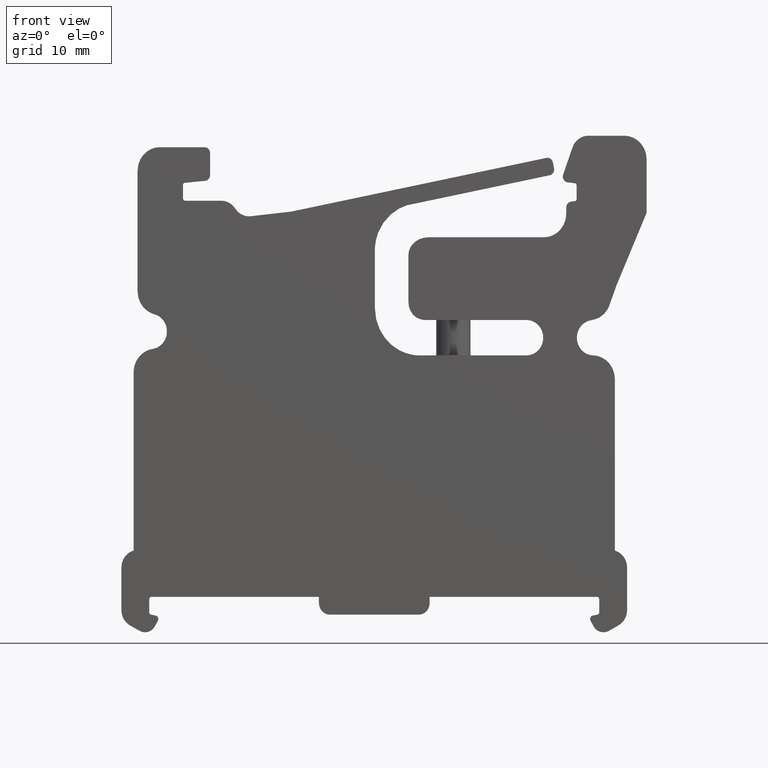
[diagram: clean part render]
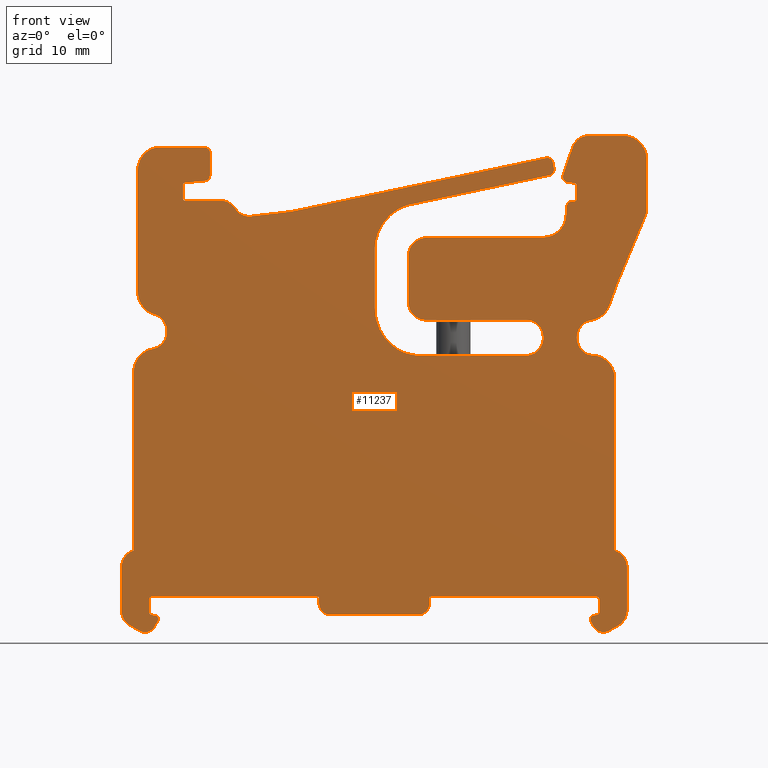
[diagram: same view with one face highlighted and labeled with its STEP entity id]
A machine part, front view. The second image highlights one B-rep face of the part: STEP entity #11237.
In plain terms, the highlighted planar face has unit normal (0, 1, 0).
Its self-contained STEP definition (entity closure, byte-faithful):
#288 =( BOUNDED_CURVE ( )  B_SPLINE_CURVE ( 3, ( #1962, #2001, #1993, #1977 ),
 .UNSPECIFIED., .F., .T. ) 
 B_SPLINE_CURVE_WITH_KNOTS ( ( 4, 4 ),
 ( 0.0000000000000000000, 0.0002975934736663538800 ),
 .UNSPECIFIED. ) 
 CURVE ( )  GEOMETRIC_REPRESENTATION_ITEM ( )  RATIONAL_B_SPLINE_CURVE ( ( 0.4999999999999999400, 0.4999999999999965000, 0.6399439387912367900, 0.9198318163737205800 ) ) 
 REPRESENTATION_ITEM ( '' )  );
#470 = LINE ( 'NONE', #524, #3244 ) ;
#505 = CARTESIAN_POINT ( 'NONE',  ( 19.04895582366853500, -9.901244391999815900, 23.60164143721013700 ) ) ;
#509 = CARTESIAN_POINT ( 'NONE',  ( 21.09827197625076100, -9.901244391999814100, 31.59857051678419300 ) ) ;
#510 = CARTESIAN_POINT ( 'NONE',  ( 22.17426153200332500, -9.901244391999814100, 1.917658880644913300 ) ) ;
#512 = CARTESIAN_POINT ( 'NONE',  ( -19.20141080790979200, -9.901244391999815900, -3.228247719886408400 ) ) ;
#513 = CARTESIAN_POINT ( 'NONE',  ( 20.43290151707477500, -9.901244391999826500, -3.708250524996357500 ) ) ;
#514 = CARTESIAN_POINT ( 'NONE',  ( -18.26574032618219700, -9.901244391999810500, 23.54552771123920300 ) ) ;
#515 = CARTESIAN_POINT ( 'NONE',  ( -18.71505966097078000, -9.901244391999814100, 23.97264128353907300 ) ) ;
#516 = CARTESIAN_POINT ( 'NONE',  ( -22.13694471838309500, -9.901244391999814100, -2.711050270021898800 ) ) ;
#517 = CARTESIAN_POINT ( 'NONE',  ( 21.09827197625470400, -9.901244391999815900, 3.413066246666470500 ) ) ;
#518 = LINE ( 'NONE', #539, #3251 ) ;
#519 = DIRECTION ( 'NONE',  ( 0.0000000000000000000, -0.0000000000000000000, 1.000000000000000000 ) ) ;
#520 = DIRECTION ( 'NONE',  ( -0.8677839415971155800, 0.0000000000000000000, 0.4969416773688576900 ) ) ;
#522 = LINE ( 'NONE', #528, #3260 ) ;
#523 = CARTESIAN_POINT ( 'NONE',  ( 19.19568167410083600, -9.901244391999814100, 20.51170115739047600 ) ) ;
#524 = CARTESIAN_POINT ( 'NONE',  ( -22.13694471838290000, -9.901244391999814100, 31.59857051678419300 ) ) ;
#525 = CARTESIAN_POINT ( 'NONE',  ( 21.69956025740853200, -9.901244391999794600, 3.237135968311776900 ) ) ;
#527 = CARTESIAN_POINT ( 'NONE',  ( 16.76397600472371600, -9.901244391999785700, 20.58238405128842900 ) ) ;
#528 = CARTESIAN_POINT ( 'NONE',  ( 17.64281089522941300, -9.901244391999814100, 35.60233360672830100 ) ) ;
#529 = CARTESIAN_POINT ( 'NONE',  ( -19.49587944518159300, -9.901244391999814100, -0.6422604611215436700 ) ) ;
#530 = CARTESIAN_POINT ( 'NONE',  ( -19.39989538091510800, -9.901244391999817700, -3.591792900587225600 ) ) ;
#531 = CARTESIAN_POINT ( 'NONE',  ( -19.69151390986305500, -9.901244391999814100, -0.8491394420111343400 ) ) ;
#532 = LINE ( 'NONE', #509, #3261 ) ;
#533 = CARTESIAN_POINT ( 'NONE',  ( -19.73279749165331500, -9.901244391999819400, -3.745445174470646500 ) ) ;
#534 = CARTESIAN_POINT ( 'NONE',  ( 22.17426153200348400, -9.901244391999792800, 2.704715389079841400 ) ) ;
#535 = DIRECTION ( 'NONE',  ( -0.0000000000000000000, 0.0000000000000000000, -1.000000000000000000 ) ) ;
#536 = CARTESIAN_POINT ( 'NONE',  ( 20.58589599797797800, -9.901244391999812300, -3.620637316887516600 ) ) ;
#538 = CARTESIAN_POINT ( 'NONE',  ( 16.43418190686207200, -9.901244391999785700, 23.24626022802318200 ) ) ;
#539 = CARTESIAN_POINT ( 'NONE',  ( 16.57213625430669500, -9.901244391999814100, 36.35493443461078300 ) ) ;
#540 = CARTESIAN_POINT ( 'NONE',  ( -20.04853289054674200, -9.901244391999814100, -3.745445174470646100 ) ) ;
#541 = DIRECTION ( 'NONE',  ( -0.9957475573880797400, 0.0000000000000000000, 0.09212384032199680300 ) ) ;
#542 = DIRECTION ( 'NONE',  ( 0.3254495568123410000, 0.0000000000000000000, 0.9455594037238753700 ) ) ;
#543 = CARTESIAN_POINT ( 'NONE',  ( -19.69151390986305800, -9.901244391999808800, -0.7112201214180741100 ) ) ;
#544 = CARTESIAN_POINT ( 'NONE',  ( -19.59369667752232400, -9.901244391999810500, -0.6422604611215441100 ) ) ;
#545 = LINE ( 'NONE', #516, #3262 ) ;
#547 = CARTESIAN_POINT ( 'NONE',  ( -18.15792320153930500, -9.901244391999812300, 22.86832134713040400 ) ) ;
#548 = CARTESIAN_POINT ( 'NONE',  ( -19.24371802638923200, -9.901244391999814100, 24.11459127027354700 ) ) ;
#550 = CARTESIAN_POINT ( 'NONE',  ( -19.24371802638923200, -9.901244391999814100, 24.11459127027355400 ) ) ;
#551 = CARTESIAN_POINT ( 'NONE',  ( 20.27246465847141400, -9.901244391999821200, -3.745445174469349800 ) ) ;
#552 = CARTESIAN_POINT ( 'NONE',  ( 20.12009965283812100, -9.901244391999812300, -3.745445174468057900 ) ) ;
#553 = CARTESIAN_POINT ( 'NONE',  ( -4.826757658024272100, -9.901244391999814100, 31.59857051678419300 ) ) ;
#554 = CARTESIAN_POINT ( 'NONE',  ( 21.92971845114691100, -9.901244391999814100, 39.75525546204978900 ) ) ;
#555 = LINE ( 'NONE', #559, #3232 ) ;
#556 = CARTESIAN_POINT ( 'NONE',  ( 16.68631728176212200, -9.901244391999810500, 35.69082577960792700 ) ) ;
#557 = CARTESIAN_POINT ( 'NONE',  ( 21.09827197625075700, -9.901244391999814100, 18.44369244514722100 ) ) ;
#558 = CARTESIAN_POINT ( 'NONE',  ( -21.06095516263419800, -9.901244391999814100, 19.02918957747570200 ) ) ;
#559 = CARTESIAN_POINT ( 'NONE',  ( 17.52781089522941100, -9.901244391999814100, 35.60233360672830100 ) ) ;
#560 = CARTESIAN_POINT ( 'NONE',  ( -19.39044387548004200, -9.901244391999814100, 21.07577913171567700 ) ) ;
#561 = CARTESIAN_POINT ( 'NONE',  ( 16.57213625427517900, -9.901244391999815900, 36.35493443451927900 ) ) ;
#562 = CARTESIAN_POINT ( 'NONE',  ( 23.88606309796291800, -9.901244391999812300, 39.06565885908402400 ) ) ;
#563 = CARTESIAN_POINT ( 'NONE',  ( -20.71859484943916400, -9.901244391999814100, 26.11975123334214600 ) ) ;
#564 = DIRECTION ( 'NONE',  ( 0.0000000000000000000, 0.0000000000000000000, -1.000000000000000000 ) ) ;
#565 = CARTESIAN_POINT ( 'NONE',  ( 23.88606309796291400, -9.901244391999814100, 30.56857051678419200 ) ) ;
#566 = LINE ( 'NONE', #567, #3249 ) ;
#567 = CARTESIAN_POINT ( 'NONE',  ( -18.51075410510144800, -9.901244391999817700, -1.963238006701452800 ) ) ;
#569 = CARTESIAN_POINT ( 'NONE',  ( -21.36838075367732200, -9.901244391999814100, -3.151173032703144600 ) ) ;
#570 = CARTESIAN_POINT ( 'NONE',  ( 16.43714308779663500, -9.901244391999807000, 35.96272600796703500 ) ) ;
#571 = CARTESIAN_POINT ( 'NONE',  ( -20.71859484943916000, -9.901244391999821200, 25.04699057692908000 ) ) ;
#572 = DIRECTION ( 'NONE',  ( -0.9957475573880797400, 0.0000000000000000000, 0.09212384032199680300 ) ) ;
#574 = CARTESIAN_POINT ( 'NONE',  ( 22.90789077455491500, -9.901244391999812300, 39.75525546204978200 ) ) ;
#575 = LINE ( 'NONE', #596, #3253 ) ;
#576 = CARTESIAN_POINT ( 'NONE',  ( 23.88606309796291400, -9.901244391999814100, 37.68646565315251000 ) ) ;
#577 = DIRECTION ( 'NONE',  ( -0.0000000000000000000, 0.0000000000000000000, -1.000000000000000000 ) ) ;
#578 = CARTESIAN_POINT ( 'NONE',  ( 19.19568167410083600, -9.901244391999812300, 20.51170115739047600 ) ) ;
#579 = CARTESIAN_POINT ( 'NONE',  ( 20.15986904166156200, -9.901244391999823000, 20.48367492906435300 ) ) ;
#580 = DIRECTION ( 'NONE',  ( -0.0000000000000000000, 0.0000000000000000000, -1.000000000000000000 ) ) ;
#581 = CARTESIAN_POINT ( 'NONE',  ( -20.06195756958056700, -9.901244391999821200, 24.33429666055226200 ) ) ;
#582 = CARTESIAN_POINT ( 'NONE',  ( -22.13694471838302000, -9.901244391999815900, -2.402964330663287300 ) ) ;
#583 = LINE ( 'NONE', #553, #3250 ) ;
#584 = CARTESIAN_POINT ( 'NONE',  ( -20.28256332002536100, -9.901244391999812300, 20.93644831375210200 ) ) ;
#585 = LINE ( 'NONE', #565, #3248 ) ;
#586 = LINE ( 'NONE', #595, #3255 ) ;
#587 = DIRECTION ( 'NONE',  ( -0.4792004235427812500, 0.0000000000000000000, -0.8777055053242055500 ) ) ;
#588 = LINE ( 'NONE', #599, #3258 ) ;
#589 = CARTESIAN_POINT ( 'NONE',  ( 16.98910024363130900, -9.901244391999812300, 35.66281312810677700 ) ) ;
#590 = CARTESIAN_POINT ( 'NONE',  ( 21.09827197625078600, -9.901244391999821200, 19.78549626974401900 ) ) ;
#591 = CARTESIAN_POINT ( 'NONE',  ( -22.13694471838290300, -9.901244391999814100, -1.786792463958326600 ) ) ;
#592 = CARTESIAN_POINT ( 'NONE',  ( -21.06095516263421200, -9.901244391999814100, 20.21964947386794300 ) ) ;
#593 = CARTESIAN_POINT ( 'NONE',  ( -21.82656311937044100, -9.901244391999812300, -2.888792150157099700 ) ) ;
#595 = CARTESIAN_POINT ( 'NONE',  ( -19.69151390986304800, -9.901244391999814100, -0.8491394420111346700 ) ) ;
#596 = CARTESIAN_POINT ( 'NONE',  ( 22.17426153200332500, -9.901244391999814100, 31.59857051678419300 ) ) ;
#597 = DIRECTION ( 'NONE',  ( 0.0000000000000000000, -0.0000000000000000000, 1.000000000000000000 ) ) ;
#598 = CARTESIAN_POINT ( 'NONE',  ( -14.36047474728667500, -9.901244391999814100, 36.31598024022025600 ) ) ;
#599 = CARTESIAN_POINT ( 'NONE',  ( -14.36047474728667500, -9.901244391999814100, 30.59857051678418900 ) ) ;
#600 = DIRECTION ( 'NONE',  ( -1.000000000000000000, -0.0000000000000000000, 0.0000000000000000000 ) ) ;
#601 = CARTESIAN_POINT ( 'NONE',  ( -18.66946491481525800, -9.901244391999814100, -2.366186696421131800 ) ) ;
#602 = CARTESIAN_POINT ( 'NONE',  ( 22.17426153200254300, -9.901244391999826500, -2.402964334539890300 ) ) ;
#603 = DIRECTION ( 'NONE',  ( 0.9830565650670543000, 0.0000000000000000000, -0.1833024546441330300 ) ) ;
#604 = CARTESIAN_POINT ( 'NONE',  ( 19.72883072347958200, -9.901244391999810500, -2.002021568195944100 ) ) ;
#605 = LINE ( 'NONE', #601, #3240 ) ;
#606 = CARTESIAN_POINT ( 'NONE',  ( 22.17426153200282400, -9.901244391999814100, -1.786792463967416600 ) ) ;
#608 = CARTESIAN_POINT ( 'NONE',  ( 19.65445672972639100, -9.901244391999824800, -2.189481550183526100 ) ) ;
#609 = CARTESIAN_POINT ( 'NONE',  ( 4.877256166826436300, -9.901244391999814100, 31.59857051678419300 ) ) ;
#610 = CARTESIAN_POINT ( 'NONE',  ( -18.80857249238489400, -9.901244391999812300, 21.16665554159869700 ) ) ;
#611 = CARTESIAN_POINT ( 'NONE',  ( -14.57438283507405800, -9.901244391999815900, 35.82226590050872500 ) ) ;
#613 = CARTESIAN_POINT ( 'NONE',  ( 19.72883072347985200, -9.901244391999823000, -2.117749619055179000 ) ) ;
#614 = DIRECTION ( 'NONE',  ( 0.3837522107221998400, 0.0000000000000000000, 0.9234361054051460900 ) ) ;
#615 = DIRECTION ( 'NONE',  ( -0.0000000000000000000, 0.0000000000000000000, -1.000000000000000000 ) ) ;
#616 = CARTESIAN_POINT ( 'NONE',  ( 20.15228965378695500, -9.901244391999814100, 24.02476952566090100 ) ) ;
#617 = LINE ( 'NONE', #632, #3241 ) ;
#618 = LINE ( 'NONE', #619, #3290 ) ;
#619 = CARTESIAN_POINT ( 'NONE',  ( -21.06095516263416200, -9.901244391999814100, 31.59857051678419300 ) ) ;
#620 = CARTESIAN_POINT ( 'NONE',  ( -14.36047474728666300, -9.901244391999819400, 36.00003080789905900 ) ) ;
#621 = DIRECTION ( 'NONE',  ( 0.0000000000000000000, -0.0000000000000000000, 1.000000000000000000 ) ) ;
#622 = CARTESIAN_POINT ( 'NONE',  ( -18.27844583497679000, -9.901244391999817700, 21.59611075793045000 ) ) ;
#623 = LINE ( 'NONE', #616, #3263 ) ;
#624 = CARTESIAN_POINT ( 'NONE',  ( -14.80693424126951500, -9.901244391999819400, 35.80075088045056500 ) ) ;
#625 = LINE ( 'NONE', #633, #3237 ) ;
#626 = LINE ( 'NONE', #609, #3233 ) ;
#627 = CARTESIAN_POINT ( 'NONE',  ( -19.39044387548004200, -9.901244391999814100, 21.07577913171567700 ) ) ;
#628 = DIRECTION ( 'NONE',  ( -0.0000000000000000000, 0.0000000000000000000, -1.000000000000000000 ) ) ;
#629 = CARTESIAN_POINT ( 'NONE',  ( -18.15792320153648700, -9.901244391999812300, 22.35312124830273500 ) ) ;
#630 = CARTESIAN_POINT ( 'NONE',  ( 21.86387992950556500, -9.901244391999821200, -2.888792155619749100 ) ) ;
#631 = CARTESIAN_POINT ( 'NONE',  ( 21.40569756373600500, -9.901244391999814100, -3.151173034750902200 ) ) ;
#632 = CARTESIAN_POINT ( 'NONE',  ( 4.405716909835709800, -9.901244391999814100, -0.6422604611215423400 ) ) ;
#633 = CARTESIAN_POINT ( 'NONE',  ( -18.78357563402909100, -9.901244391999814100, -3.745445174470646100 ) ) ;
#634 = CARTESIAN_POINT ( 'NONE',  ( 19.56716782730323700, -9.901244391999814100, -2.205757592469687700 ) ) ;
#635 = DIRECTION ( 'NONE',  ( -1.000000000000000000, 0.0000000000000000000, -0.0000000000000000000 ) ) ;
#636 = CARTESIAN_POINT ( 'NONE',  ( 18.97195215651861100, -9.901244391999814100, -2.739620659437729700 ) ) ;
#638 = CARTESIAN_POINT ( 'NONE',  ( 18.84805821664232200, -9.901244391999807000, -2.512695996001647300 ) ) ;
#639 = CARTESIAN_POINT ( 'NONE',  ( 18.97851863304903800, -9.901244391999808800, -2.315518155833034400 ) ) ;
#640 = CARTESIAN_POINT ( 'NONE',  ( 19.17513142897758600, -9.901244391999815900, -2.278857388225625800 ) ) ;
#641 = LINE ( 'NONE', #643, #3269 ) ;
#642 = CARTESIAN_POINT ( 'NONE',  ( -20.08278283922377500, -9.901244391999814100, -3.745445174470646100 ) ) ;
#643 = CARTESIAN_POINT ( 'NONE',  ( 18.54807091872110500, -9.901244391999814100, -1.963238006709052500 ) ) ;
#644 = CARTESIAN_POINT ( 'NONE',  ( -20.39558470346037200, -9.901244391999814100, -3.708250524998498500 ) ) ;
#645 = CARTESIAN_POINT ( 'NONE',  ( -18.15792320154909600, -9.901244391999810500, 12.49636386209672000 ) ) ;
#646 = CARTESIAN_POINT ( 'NONE',  ( 19.23872762270351800, -9.901244391999810500, -3.228247722038204400 ) ) ;
#647 = CARTESIAN_POINT ( 'NONE',  ( 20.08584970415927300, -9.901244391999812300, -3.745445174468058400 ) ) ;
#648 = CARTESIAN_POINT ( 'NONE',  ( -19.61713991610955100, -9.901244391999824800, -2.189481550186407300 ) ) ;
#649 = CARTESIAN_POINT ( 'NONE',  ( -19.52985101361155200, -9.901244391999814100, -2.205757592486210500 ) ) ;
#650 = CARTESIAN_POINT ( 'NONE',  ( 18.76986908673685100, -9.901244391999814100, 39.75525546204979600 ) ) ;
#651 = CARTESIAN_POINT ( 'NONE',  ( 22.17426153200250400, -9.901244391999814100, -2.711050270030991100 ) ) ;
#652 = CARTESIAN_POINT ( 'NONE',  ( 19.72883072347956500, -9.901244391999812300, -0.7112201214182272100 ) ) ;
#653 = CARTESIAN_POINT ( 'NONE',  ( 19.53319625879768800, -9.901244391999814100, -0.6422604611215436700 ) ) ;
#654 = CARTESIAN_POINT ( 'NONE',  ( 18.21455674698293600, -9.901244391999830100, 39.75525546204978900 ) ) ;
#655 = DIRECTION ( 'NONE',  ( 0.0000000000000000000, 0.0000000000000000000, 1.000000000000000000 ) ) ;
#656 = CARTESIAN_POINT ( 'NONE',  ( -20.23514784485601900, -9.901244391999817700, -3.745445174471940100 ) ) ;
#657 = CARTESIAN_POINT ( 'NONE',  ( -20.54857918436143300, -9.901244391999815900, -3.620637316885157600 ) ) ;
#658 = CARTESIAN_POINT ( 'NONE',  ( -19.69151390986332500, -9.901244391999826500, -2.117749619058161100 ) ) ;
#659 = CARTESIAN_POINT ( 'NONE',  ( 19.43721219759949300, -9.901244391999824800, -3.591792901996707900 ) ) ;
#660 = CARTESIAN_POINT ( 'NONE',  ( 4.877256166826438000, -9.901244391999812300, -1.863668754553179800 ) ) ;
#661 = CARTESIAN_POINT ( 'NONE',  ( 18.70678172843219400, -9.901244391999814100, -2.366186696418546300 ) ) ;
#662 = DIRECTION ( 'NONE',  ( 0.9830565650670546300, 0.0000000000000000000, 0.1833024546441309700 ) ) ;
#663 = CARTESIAN_POINT ( 'NONE',  ( 17.63540950986460100, -9.901244391999830100, 39.44416287358854600 ) ) ;
#664 = DIRECTION ( 'NONE',  ( 0.8677839415973140900, 0.0000000000000000000, 0.4969416773685110800 ) ) ;
#665 = LINE ( 'NONE', #651, #3279 ) ;
#666 = LINE ( 'NONE', #645, #3275 ) ;
#667 = CARTESIAN_POINT ( 'NONE',  ( 3.906885458401079700, -9.901244391999814100, -2.205717046114018300 ) ) ;
#668 = CARTESIAN_POINT ( 'NONE',  ( -19.69151390986304400, -9.901244391999814100, -2.002021568198701000 ) ) ;
#669 = CARTESIAN_POINT ( 'NONE',  ( 4.877256166826438000, -9.901244391999814100, -1.179572171431504200 ) ) ;
#670 = LINE ( 'NONE', #671, #3272 ) ;
#671 = CARTESIAN_POINT ( 'NONE',  ( 4.405716909835709800, -9.901244391999814100, -2.205717046114018300 ) ) ;
#672 = DIRECTION ( 'NONE',  ( -1.000000000000000000, -0.0000000000000000000, 0.0000000000000000000 ) ) ;
#673 = CARTESIAN_POINT ( 'NONE',  ( 19.72883072347958200, -9.901244391999814100, -0.8491394420115931900 ) ) ;
#674 = CARTESIAN_POINT ( 'NONE',  ( -21.66224344378681700, -9.901244391999803400, 3.237135968310343300 ) ) ;
#675 = CARTESIAN_POINT ( 'NONE',  ( -22.13694471838436000, -9.901244391999799900, 2.704715389078514500 ) ) ;
#676 = LINE ( 'NONE', #661, #3271 ) ;
#677 = CARTESIAN_POINT ( 'NONE',  ( -22.13694471838500600, -9.901244391999817700, 1.917658880645605000 ) ) ;
#678 = CARTESIAN_POINT ( 'NONE',  ( -21.06095516262962500, -9.901244391999814100, 3.413066246662728200 ) ) ;
#679 = CARTESIAN_POINT ( 'NONE',  ( 17.39109711505360100, -9.901244391999814100, 38.73433894431656200 ) ) ;
#680 = LINE ( 'NONE', #682, #3281 ) ;
#681 = DIRECTION ( 'NONE',  ( 0.4792004235424468500, 0.0000000000000000000, -0.8777055053243881800 ) ) ;
#682 = CARTESIAN_POINT ( 'NONE',  ( 20.12009965284270100, -9.901244391999814100, -3.745445174468060600 ) ) ;
#683 = DIRECTION ( 'NONE',  ( -1.000000000000000000, 0.0000000000000000000, -0.0000000000000000000 ) ) ;
#684 = CARTESIAN_POINT ( 'NONE',  ( 4.392070812613759800, -9.901244391999814100, -2.205717046114017900 ) ) ;
#685 = CARTESIAN_POINT ( 'NONE',  ( 19.63101349113861400, -9.901244391999814100, -0.6422604611215442200 ) ) ;
#686 = CARTESIAN_POINT ( 'NONE',  ( -3.856386949598918300, -9.901244391999812300, -2.205717046114019600 ) ) ;
#687 = CARTESIAN_POINT ( 'NONE',  ( 19.77011430679507200, -9.901244391999826500, -3.745445174465379600 ) ) ;
#688 = CARTESIAN_POINT ( 'NONE',  ( 20.34196568020179200, -9.901244391999799900, 24.11786025200203200 ) ) ;
#691 = LINE ( 'NONE', #693, #3296 ) ;
#692 = LINE ( 'NONE', #695, #3301 ) ;
#693 = CARTESIAN_POINT ( 'NONE',  ( 17.52781089522941100, -9.901244391999814100, 34.01769708111374500 ) ) ;
#694 = DIRECTION ( 'NONE',  ( 0.9957475573880489900, 0.0000000000000000000, 0.09212384032232891200 ) ) ;
#695 = CARTESIAN_POINT ( 'NONE',  ( 4.405716909835709800, -9.901244391999814100, 38.75086055759770400 ) ) ;
#697 = CARTESIAN_POINT ( 'NONE',  ( -4.341572303811597400, -9.901244391999823000, -2.205717046114020100 ) ) ;
#698 = CARTESIAN_POINT ( 'NONE',  ( -18.76225020262297200, -9.901244391999814100, 38.75086055759770400 ) ) ;
#699 = DIRECTION ( 'NONE',  ( 1.000000000000000000, 0.0000000000000000000, -0.0000000000000000000 ) ) ;
#701 = CARTESIAN_POINT ( 'NONE',  ( -14.60501782813908100, -9.901244391999830100, 38.75086055759746300 ) ) ;
#703 = LINE ( 'NONE', #707, #3277 ) ;
#704 = LINE ( 'NONE', #720, #3294 ) ;
#705 = DIRECTION ( 'NONE',  ( -0.3367066813744769600, 0.0000000000000000000, -0.9416095850817294300 ) ) ;
#706 = CARTESIAN_POINT ( 'NONE',  ( -4.826757658024271300, -9.901244391999814100, -1.179572171431510200 ) ) ;
#707 = CARTESIAN_POINT ( 'NONE',  ( 19.72883072347960000, -9.901244391999814100, -0.8491394420115938600 ) ) ;
#708 = CARTESIAN_POINT ( 'NONE',  ( -19.74042252603091900, -9.901244391999823000, 38.75086055759769700 ) ) ;
#709 = LINE ( 'NONE', #711, #3292 ) ;
#710 = CARTESIAN_POINT ( 'NONE',  ( 19.04895582366853500, -9.901244391999817700, 23.60164143721013700 ) ) ;
#711 = CARTESIAN_POINT ( 'NONE',  ( 4.405716909835709800, -9.901244391999814100, -0.6422604611215423400 ) ) ;
#712 = CARTESIAN_POINT ( 'NONE',  ( -14.36047474728734100, -9.901244391999830100, 38.57846140685648400 ) ) ;
#713 = CARTESIAN_POINT ( 'NONE',  ( -14.36047474728668000, -9.901244391999812300, 38.23366310537361600 ) ) ;
#715 = LINE ( 'NONE', #717, #3264 ) ;
#716 = DIRECTION ( 'NONE',  ( -1.000000000000000000, -0.0000000000000000000, 0.0000000000000000000 ) ) ;
#717 = CARTESIAN_POINT ( 'NONE',  ( -20.71859484943916400, -9.901244391999814100, 30.59857051678418900 ) ) ;
#718 = DIRECTION ( 'NONE',  ( 0.0000000000000000000, 0.0000000000000000000, 1.000000000000000000 ) ) ;
#719 = CARTESIAN_POINT ( 'NONE',  ( -20.71859484943894400, -9.901244391999814100, 36.68207074870053900 ) ) ;
#720 = CARTESIAN_POINT ( 'NONE',  ( 23.88606309796291400, -9.901244391999814100, 34.02902710323695600 ) ) ;
#721 = CARTESIAN_POINT ( 'NONE',  ( -14.84956090899072800, -9.901244391999810500, 38.75086055759752000 ) ) ;
#722 = DIRECTION ( 'NONE',  ( 0.0000000000000000000, -0.0000000000000000000, 1.000000000000000000 ) ) ;
#723 = CARTESIAN_POINT ( 'NONE',  ( -20.71859484943886500, -9.901244391999828300, 38.06126395463198300 ) ) ;
#725 = CARTESIAN_POINT ( 'NONE',  ( 20.62945401695748200, -9.901244391999817700, 24.92182936952615800 ) ) ;
#728 = CARTESIAN_POINT ( 'NONE',  ( 19.70937363706266500, -9.901244391999798100, 23.69140066057467200 ) ) ;
#731 = CARTESIAN_POINT ( 'NONE',  ( -4.826757658024273000, -9.901244391999817700, -1.863668754553182500 ) ) ;
#738 = LINE ( 'NONE', #769, #3276 ) ;
#739 = CARTESIAN_POINT ( 'NONE',  ( -18.81074140496315600, -9.901244391999821200, -2.512696002821686900 ) ) ;
#750 = CARTESIAN_POINT ( 'NONE',  ( -18.93463534339717600, -9.901244391999814100, -2.739620660342004100 ) ) ;
#765 = CARTESIAN_POINT ( 'NONE',  ( -18.94120181446833900, -9.901244391999815900, -2.315518162104117600 ) ) ;
#766 = CARTESIAN_POINT ( 'NONE',  ( -19.13781461446321300, -9.901244391999814100, -2.278857388395551600 ) ) ;
#769 = CARTESIAN_POINT ( 'NONE',  ( 4.405716909835709800, -9.901244391999814100, 39.75525546204979600 ) ) ;
#776 = DIRECTION ( 'NONE',  ( 1.000000000000000000, 0.0000000000000000000, -0.0000000000000000000 ) ) ;
#970 = LINE ( 'NONE', #972, #3323 ) ;
#972 = CARTESIAN_POINT ( 'NONE',  ( 15.67626954650758900, -9.901244391999817700, 37.40744701181065300 ) ) ;
#975 = DIRECTION ( 'NONE',  ( 0.1849247396550619300, 0.0000000000000000000, -0.9827526854013209900 ) ) ;
#1011 = LINE ( 'NONE', #1014, #3317 ) ;
#1012 = DIRECTION ( 'NONE',  ( 0.9785702023063404000, 0.0000000000000000000, 0.2059134749309230200 ) ) ;
#1014 = CARTESIAN_POINT ( 'NONE',  ( 4.405716909835709800, -9.901244391999814100, 30.85945928379158300 ) ) ;
#1015 = CARTESIAN_POINT ( 'NONE',  ( 1.822288382050481800, -9.901244391999759000, 33.60444815716670100 ) ) ;
#1016 = CARTESIAN_POINT ( 'NONE',  ( 13.36696349363818800, -9.901244391999814100, 23.61430004820236300 ) ) ;
#1018 = LINE ( 'NONE', #1053, #3326 ) ;
#1020 = DIRECTION ( 'NONE',  ( 7.668624893001387600E-014, 0.0000000000000000000, 1.000000000000000000 ) ) ;
#1021 = CARTESIAN_POINT ( 'NONE',  ( 16.30148046386229400, -9.901244391999810500, 20.51111533485658000 ) ) ;
#1023 = LINE ( 'NONE', #1035, #3332 ) ;
#1031 = CARTESIAN_POINT ( 'NONE',  ( 16.30148046386159800, -9.901244391999808800, 23.61430004820237400 ) ) ;
#1032 = LINE ( 'NONE', #1045, #3310 ) ;
#1035 = CARTESIAN_POINT ( 'NONE',  ( -16.73981417197737200, -9.901244391999824800, 34.27109814647054300 ) ) ;
#1037 = DIRECTION ( 'NONE',  ( 1.000000000000000000, 0.0000000000000000000, -0.0000000000000000000 ) ) ;
#1038 = CARTESIAN_POINT ( 'NONE',  ( 13.36696349363827200, -9.901244391999814100, 20.51111533485849100 ) ) ;
#1043 = DIRECTION ( 'NONE',  ( 0.9933518707421746800, 0.0000000000000000000, 0.1151175959313860700 ) ) ;
#1044 = CARTESIAN_POINT ( 'NONE',  ( 3.555610681560739100, -9.901244391999814100, 33.80531944516386700 ) ) ;
#1045 = CARTESIAN_POINT ( 'NONE',  ( 3.363931661671130800, -9.901244391999814100, 35.34398783387764100 ) ) ;
#1046 = CARTESIAN_POINT ( 'NONE',  ( 17.64281089522941300, -9.901244391999814100, 34.01769708111374500 ) ) ;
#1047 = CARTESIAN_POINT ( 'NONE',  ( 0.2321777840016673600, -9.901244391999760800, 32.30210515396812100 ) ) ;
#1048 = CARTESIAN_POINT ( 'NONE',  ( 0.07868923868282402800, -9.901244391999814100, 29.98099144397799200 ) ) ;
#1049 = LINE ( 'NONE', #1046, #3331 ) ;
#1053 = CARTESIAN_POINT ( 'NONE',  ( -10.78753066940187500, -9.901244391999814100, 32.70400267811452000 ) ) ;
#1054 = CARTESIAN_POINT ( 'NONE',  ( 0.07868923868270097400, -9.901244391999821200, 21.89030854079922900 ) ) ;
#1056 = LINE ( 'NONE', #1063, #3365 ) ;
#1057 = CARTESIAN_POINT ( 'NONE',  ( 15.16548382510137600, -9.901244391999805200, 37.82370848420880100 ) ) ;
#1058 = CARTESIAN_POINT ( 'NONE',  ( 15.19658776642298500, -9.901244391999810500, 37.82370848420878000 ) ) ;
#1060 = CARTESIAN_POINT ( 'NONE',  ( 16.84310864546139900, -9.901244391999819400, 32.92824909268683300 ) ) ;
#1062 = DIRECTION ( 'NONE',  ( 0.0000000000000000000, 0.0000000000000000000, -1.000000000000000000 ) ) ;
#1063 = CARTESIAN_POINT ( 'NONE',  ( 16.84310864546140300, -9.901244391999814100, 33.42367782143288200 ) ) ;
#1067 = DIRECTION ( 'NONE',  ( -0.9957475573880502100, 0.0000000000000000000, -0.09212384032231690800 ) ) ;
#1069 = LINE ( 'NONE', #1097, #3350 ) ;
#1070 = CARTESIAN_POINT ( 'NONE',  ( 3.991378532314609400, -9.901244391999814100, 20.51111533486064400 ) ) ;
#1073 = DIRECTION ( 'NONE',  ( 0.003980245296161160100, 0.0000000000000000000, 0.9999920787923183300 ) ) ;
#1074 = CARTESIAN_POINT ( 'NONE',  ( 14.88676399864539900, -9.901244391999842500, 30.85945928379158300 ) ) ;
#1077 = DIRECTION ( 'NONE',  ( -0.1030805972113072700, 0.0000000000000000000, 0.9946730068110627400 ) ) ;
#1078 = LINE ( 'NONE', #1087, #3368 ) ;
#1079 = LINE ( 'NONE', #1090, #3371 ) ;
#1082 = CARTESIAN_POINT ( 'NONE',  ( -16.54417970729576500, -9.901244391999821200, 34.06421916558078100 ) ) ;
#1085 = CARTESIAN_POINT ( 'NONE',  ( 16.84310864545883000, -9.901244391999746600, 31.54905588675554300 ) ) ;
#1087 = CARTESIAN_POINT ( 'NONE',  ( 3.555915932600716400, -9.901244391999814100, 33.80237366285998500 ) ) ;
#1088 = CARTESIAN_POINT ( 'NONE',  ( 15.10113796846546700, -9.901244391999819400, 37.81376356475215100 ) ) ;
#1089 = CARTESIAN_POINT ( 'NONE',  ( 0.07868923868380389700, -9.901244391999814100, 24.64869495266128000 ) ) ;
#1090 = CARTESIAN_POINT ( 'NONE',  ( 16.84310864546139900, -9.901244391999824800, 33.46491703998944400 ) ) ;
#1092 = CARTESIAN_POINT ( 'NONE',  ( 15.13351838076078300, -9.901244391999805200, 37.82057714310977300 ) ) ;
#1093 = CARTESIAN_POINT ( 'NONE',  ( 2.035033885497176800, -9.901244391999819400, 20.51111533486597000 ) ) ;
#1094 = DIRECTION ( 'NONE',  ( 0.9957475573880489900, 0.0000000000000000000, 0.09212384032232891200 ) ) ;
#1096 = CARTESIAN_POINT ( 'NONE',  ( 15.86493632205195100, -9.901244391999750100, 30.85945928379159000 ) ) ;
#1097 = CARTESIAN_POINT ( 'NONE',  ( -14.80693424128351100, -9.901244391999814100, 35.80075088044929300 ) ) ;
#1099 = DIRECTION ( 'NONE',  ( 1.236996337087614100E-013, 0.0000000000000000000, 1.000000000000000000 ) ) ;
#1100 = CARTESIAN_POINT ( 'NONE',  ( -16.73981417197728300, -9.901244391999821200, 35.42171697142822500 ) ) ;
#1101 = CARTESIAN_POINT ( 'NONE',  ( -16.64199693963659100, -9.901244391999780300, 34.06421916558076600 ) ) ;
#1102 = CARTESIAN_POINT ( 'NONE',  ( 15.67626954651031200, -9.901244391999810500, 37.40744701179617200 ) ) ;
#1103 = CARTESIAN_POINT ( 'NONE',  ( -16.56123036991924700, -9.901244391999819400, 35.62780871574916100 ) ) ;
#1105 = DIRECTION ( 'NONE',  ( 0.0000000000000000000, -0.0000000000000000000, 1.000000000000000000 ) ) ;
#1106 = DIRECTION ( 'NONE',  ( -0.9785702023063271900, 0.0000000000000000000, -0.2059134749309866100 ) ) ;
#1109 = CARTESIAN_POINT ( 'NONE',  ( -12.93910673210416100, -9.901244391999796300, 34.06421916558081600 ) ) ;
#1111 = CARTESIAN_POINT ( 'NONE',  ( 15.19658776642298500, -9.901244391999810500, 37.82370848420878000 ) ) ;
#1115 = CARTESIAN_POINT ( 'NONE',  ( 15.62260455649772500, -9.901244391999865600, 37.69264094100284300 ) ) ;
#1120 = LINE ( 'NONE', #1125, #3355 ) ;
#1122 = CARTESIAN_POINT ( 'NONE',  ( 14.65550197180658300, -9.901244391999814100, 33.44544654278149700 ) ) ;
#1124 = DIRECTION ( 'NONE',  ( -0.0000000000000000000, -1.000000000000000000, -0.0000000000000000000 ) ) ;
#1125 = CARTESIAN_POINT ( 'NONE',  ( 3.013206208911504400, -9.901244391999814100, 30.56857051678419200 ) ) ;
#1126 = CARTESIAN_POINT ( 'NONE',  ( 15.40668655104291300, -9.901244391999862100, 37.82370848420878700 ) ) ;
#1129 = CARTESIAN_POINT ( 'NONE',  ( -13.38117881193271000, -9.901244391999821200, 34.06421916558080900 ) ) ;
#1130 = CARTESIAN_POINT ( 'NONE',  ( -12.16427407748504800, -9.901244391999812300, 33.37949389462527000 ) ) ;
#1131 = CARTESIAN_POINT ( 'NONE',  ( -16.73981417197737200, -9.901244391999819400, 34.27109814647054300 ) ) ;
#1132 = CARTESIAN_POINT ( 'NONE',  ( -12.47171725609942400, -9.901244391999785700, 33.86212014305795000 ) ) ;
#1133 = CARTESIAN_POINT ( 'NONE',  ( -16.65425091229806000, -9.901244391999780300, 35.61920272772657400 ) ) ;
#1135 = CARTESIAN_POINT ( 'NONE',  ( -16.73981417197727200, -9.901244391999773200, 35.54809676757529500 ) ) ;
#1137 = LINE ( 'NONE', #1138, #3369 ) ;
#1138 = CARTESIAN_POINT ( 'NONE',  ( 15.38748735704820100, -9.901244391999814100, 36.29200596533577500 ) ) ;
#1139 = CARTESIAN_POINT ( 'NONE',  ( -16.73981417197740400, -9.901244391999775000, 34.13317882587736600 ) ) ;
#1145 = CARTESIAN_POINT ( 'NONE',  ( 15.77171934183117800, -9.901244391999817700, 36.90019447842762900 ) ) ;
#1146 = CARTESIAN_POINT ( 'NONE',  ( 17.28954650893178200, -9.901244391999817700, 33.98501402638426300 ) ) ;
#1147 = LINE ( 'NONE', #1177, #3353 ) ;
#1148 = LINE ( 'NONE', #1182, #3352 ) ;
#1149 = CARTESIAN_POINT ( 'NONE',  ( -14.69193424128351000, -9.901244391999814100, 35.80075088044929300 ) ) ;
#1154 = LINE ( 'NONE', #1149, #3375 ) ;
#1155 = CARTESIAN_POINT ( 'NONE',  ( 15.83332912949777000, -9.901244391999807000, 36.57277920418269400 ) ) ;
#1156 = CARTESIAN_POINT ( 'NONE',  ( -12.16427407748504800, -9.901244391999812300, 33.37949389462527000 ) ) ;
#1159 = DIRECTION ( 'NONE',  ( -0.9957475573880502100, 0.0000000000000000000, -0.09212384032231690800 ) ) ;
#1160 = LINE ( 'NONE', #1166, #3357 ) ;
#1163 = CARTESIAN_POINT ( 'NONE',  ( 15.63858890883014900, -9.901244391999805200, 36.34484345527389600 ) ) ;
#1166 = CARTESIAN_POINT ( 'NONE',  ( 4.405716909835709800, -9.901244391999814100, 34.06421916558076600 ) ) ;
#1168 = CARTESIAN_POINT ( 'NONE',  ( 17.05527461584832600, -9.901244391999801700, 33.96333984970712500 ) ) ;
#1172 = CARTESIAN_POINT ( 'NONE',  ( 16.84310864546129900, -9.901244391999814100, 33.46491704000299400 ) ) ;
#1174 = DIRECTION ( 'NONE',  ( 0.0000000000000000000, 0.0000000000000000000, -1.000000000000000000 ) ) ;
#1177 = CARTESIAN_POINT ( 'NONE',  ( -16.00740236895541100, -9.901244391999814100, 29.56857051678419200 ) ) ;
#1179 = CARTESIAN_POINT ( 'NONE',  ( 16.84027412924684300, -9.901244391999799900, 33.78338818442517800 ) ) ;
#1180 = DIRECTION ( 'NONE',  ( 1.000000000000000000, 0.0000000000000000000, -0.0000000000000000000 ) ) ;
#1182 = CARTESIAN_POINT ( 'NONE',  ( 4.405716909835709800, -9.901244391999814100, 20.51111533486494000 ) ) ;
#1183 = DIRECTION ( 'NONE',  ( 1.000000000000000000, 0.0000000000000000000, -0.0000000000000000000 ) ) ;
#1184 = CARTESIAN_POINT ( 'NONE',  ( 15.38748735707707000, -9.901244391999817700, 36.29200596534182200 ) ) ;
#1189 = CARTESIAN_POINT ( 'NONE',  ( 4.109458487913778800, -9.901244391999751900, 30.74889929701906200 ) ) ;
#1192 = LINE ( 'NONE', #1219, #3367 ) ;
#1194 = CARTESIAN_POINT ( 'NONE',  ( 3.588934026404660700, -9.901244391999751900, 30.47193037811363000 ) ) ;
#1196 = CARTESIAN_POINT ( 'NONE',  ( 3.746835451463608600, -9.901244391999808800, 23.61430004820517300 ) ) ;
#1197 = CARTESIAN_POINT ( 'NONE',  ( 4.232394966660100600, -9.901244391999751900, 30.78892927755923000 ) ) ;
#1199 = CARTESIAN_POINT ( 'NONE',  ( -11.38944142096987600, -9.901244391999771500, 32.69476862518941800 ) ) ;
#1200 = CARTESIAN_POINT ( 'NONE',  ( 3.774796710576500600, -9.901244391999751900, 30.60409676170424800 ) ) ;
#1202 = CARTESIAN_POINT ( 'NONE',  ( 4.405716909835709800, -9.901244391999814100, 23.61430004820237000 ) ) ;
#1203 = CARTESIAN_POINT ( 'NONE',  ( 4.480464694020072100, -9.901244391999817700, 23.61430004820240600 ) ) ;
#1204 = LINE ( 'NONE', #1202, #3370 ) ;
#1208 = CARTESIAN_POINT ( 'NONE',  ( 3.013206208911503500, -9.901244391999751900, 29.39736833818183100 ) ) ;
#1210 = CARTESIAN_POINT ( 'NONE',  ( -10.94736934400545700, -9.901244391999771500, 32.69476862518942500 ) ) ;
#1211 = CARTESIAN_POINT ( 'NONE',  ( -10.78753066940187800, -9.901244391999815900, 32.70400267811453400 ) ) ;
#1212 = CARTESIAN_POINT ( 'NONE',  ( 3.022141006909739400, -9.901244391999751900, 29.48818600446636000 ) ) ;
#1214 = CARTESIAN_POINT ( 'NONE',  ( 4.628886463719863900, -9.901244391999751900, 30.85945928379158300 ) ) ;
#1219 = CARTESIAN_POINT ( 'NONE',  ( 0.07868923868282334800, -9.901244391999814100, 31.59857051678419300 ) ) ;
#1220 = DIRECTION ( 'NONE',  ( -0.0000000000000000000, 0.0000000000000000000, -1.000000000000000000 ) ) ;
#1221 = CARTESIAN_POINT ( 'NONE',  ( 4.773916391046035400, -9.901244391999819400, 30.85945928379158300 ) ) ;
#1222 = CARTESIAN_POINT ( 'NONE',  ( 3.013206208913247400, -9.901244391999814100, 25.16589240487865800 ) ) ;
#1224 = CARTESIAN_POINT ( 'NONE',  ( -10.84153272626047500, -9.901244391999767900, 32.69774448588154300 ) ) ;
#1225 = CARTESIAN_POINT ( 'NONE',  ( -10.89488650106540200, -9.901244391999769700, 32.69476862518941100 ) ) ;
#1227 = CARTESIAN_POINT ( 'NONE',  ( 3.298844496147773400, -9.901244391999751900, 30.17723564664823100 ) ) ;
#1228 = CARTESIAN_POINT ( 'NONE',  ( 3.013206208911503900, -9.901244391999808800, 24.13149750043412200 ) ) ;
#1229 = CARTESIAN_POINT ( 'NONE',  ( 3.191499374297602600, -9.901244391999751900, 30.01259275106847800 ) ) ;
#1231 = CARTESIAN_POINT ( 'NONE',  ( 4.491913192418223800, -9.901244391999751900, 30.84393773743748600 ) ) ;
#1235 = DIRECTION ( 'NONE',  ( -1.000000000000000000, -0.0000000000000000000, 0.0000000000000000000 ) ) ;
#1237 = CARTESIAN_POINT ( 'NONE',  ( 3.084238155294440900, -9.901244391999751900, 29.75370022127635000 ) ) ;
#1238 = CARTESIAN_POINT ( 'NONE',  ( 3.057674340425955400, -9.901244391999751900, 29.66593342914794800 ) ) ;
#1241 = CARTESIAN_POINT ( 'NONE',  ( -11.85683089404537000, -9.901244391999767900, 32.89686764520721600 ) ) ;
#1242 = CARTESIAN_POINT ( 'NONE',  ( 3.013206208911500400, -9.901244391999821200, 29.30786692711847500 ) ) ;
#1834 = LINE ( 'NONE', #1860, #3431 ) ;
#1844 = DIRECTION ( 'NONE',  ( 0.0000000000000000000, 0.0000000000000000000, -1.000000000000000000 ) ) ;
#1860 = CARTESIAN_POINT ( 'NONE',  ( 17.75530330900502600, -9.901244391999824800, 35.39171697143196800 ) ) ;
#1962 = CARTESIAN_POINT ( 'NONE',  ( 17.75530330900502600, -9.901244391999805200, 34.22831371641012100 ) ) ;
#1977 = CARTESIAN_POINT ( 'NONE',  ( 17.57671946444934700, -9.901244391999814100, 34.02222196815743200 ) ) ;
#1983 = LINE ( 'NONE', #1997, #3454 ) ;
#1993 = CARTESIAN_POINT ( 'NONE',  ( 17.66974000918670000, -9.901244391999959800, 34.03082792675483100 ) ) ;
#1997 = CARTESIAN_POINT ( 'NONE',  ( 17.35868413465518900, -9.901244391999814100, 29.56857051678419200 ) ) ;
#2001 = CARTESIAN_POINT ( 'NONE',  ( 17.75530330900502900, -9.901244391999963300, 34.10193388232283200 ) ) ;
#2006 = DIRECTION ( 'NONE',  ( 0.0000000000000000000, 0.0000000000000000000, 1.000000000000000000 ) ) ;
#2131 = CARTESIAN_POINT ( 'NONE',  ( 17.35868413465518900, -9.901244391999814100, 29.56857051678419200 ) ) ;
#2137 = DIRECTION ( 'NONE',  ( 0.0000000000000000000, 0.0000000000000000000, 1.000000000000000000 ) ) ;
#2168 = LINE ( 'NONE', #2131, #3453 ) ;
#2176 = CARTESIAN_POINT ( 'NONE',  ( 17.75530330900502600, -9.901244391999819400, 35.39171697143235900 ) ) ;
#2184 = CARTESIAN_POINT ( 'NONE',  ( 17.66974004932555100, -9.901244391999751900, 35.58920272773037400 ) ) ;
#2206 = CARTESIAN_POINT ( 'NONE',  ( 17.57671950694690100, -9.901244391999840700, 35.59780871575289800 ) ) ;
#2210 = CARTESIAN_POINT ( 'NONE',  ( 17.75530330900472000, -9.901244391999744800, 35.51809676757936500 ) ) ;
#2820 = CARTESIAN_POINT ( 'NONE',  ( 0.07868923868380389700, -9.901244391999814100, 24.64869495266128000 ) ) ;
#2821 = CARTESIAN_POINT ( 'NONE',  ( 15.77171934183117800, -9.901244391999817700, 36.90019447842762900 ) ) ;
#2822 = CARTESIAN_POINT ( 'NONE',  ( 3.555610681560739100, -9.901244391999814100, 33.80531944516386700 ) ) ;
#2824 = CARTESIAN_POINT ( 'NONE',  ( 16.84310864546129900, -9.901244391999814100, 33.46491704000299400 ) ) ;
#2825 = CARTESIAN_POINT ( 'NONE',  ( 15.38748735707707000, -9.901244391999817700, 36.29200596534182200 ) ) ;
#2827 = CARTESIAN_POINT ( 'NONE',  ( 3.555915932600718600, -9.901244391999810500, 33.80237366285994200 ) ) ;
#2828 = CARTESIAN_POINT ( 'NONE',  ( 0.07868923868282402800, -9.901244391999814100, 29.98099144397799200 ) ) ;
#2829 = CARTESIAN_POINT ( 'NONE',  ( 15.19658776642298500, -9.901244391999810500, 37.82370848420878000 ) ) ;
#2832 = CARTESIAN_POINT ( 'NONE',  ( 13.36696349363827200, -9.901244391999814100, 20.51111533485849100 ) ) ;
#2834 = CARTESIAN_POINT ( 'NONE',  ( 16.84312597457051900, -9.901244391999814100, 33.42803156612897200 ) ) ;
#2836 = CARTESIAN_POINT ( 'NONE',  ( 16.84310864546139900, -9.901244391999819400, 32.92824909268683300 ) ) ;
#2837 = CARTESIAN_POINT ( 'NONE',  ( -10.78753066940187800, -9.901244391999815900, 32.70400267811453400 ) ) ;
#2838 = CARTESIAN_POINT ( 'NONE',  ( -7.214188159544243600, -9.901244391999817700, 33.11811031840810700 ) ) ;
#2839 = CARTESIAN_POINT ( 'NONE',  ( 15.10113796846546700, -9.901244391999819400, 37.81376356475215100 ) ) ;
#2860 = CARTESIAN_POINT ( 'NONE',  ( 13.36696349363818800, -9.901244391999814100, 23.61430004820236300 ) ) ;
#3038 =( BOUNDED_CURVE ( )  B_SPLINE_CURVE ( 3, ( #558, #592, #584, #560 ),
 .UNSPECIFIED., .F., .T. ) 
 B_SPLINE_CURVE_WITH_KNOTS ( ( 4, 4 ),
 ( 3.469446951953614200E-018, 0.002862628016569640500 ),
 .UNSPECIFIED. ) 
 CURVE ( )  GEOMETRIC_REPRESENTATION_ITEM ( )  RATIONAL_B_SPLINE_CURVE ( ( 0.5000000000000000000, 0.5000000000000001100, 0.6241732564908403200, 0.8725197694725209700 ) ) 
 REPRESENTATION_ITEM ( '' )  );
#3040 =( BOUNDED_CURVE ( )  B_SPLINE_CURVE ( 3, ( #554, #574, #562, #576 ),
 .UNSPECIFIED., .F., .T. ) 
 B_SPLINE_CURVE_WITH_KNOTS ( ( 4, 4 ),
 ( 0.0000000000000000000, 0.003144850464088360900 ),
 .UNSPECIFIED. ) 
 CURVE ( )  GEOMETRIC_REPRESENTATION_ITEM ( )  RATIONAL_B_SPLINE_CURVE ( ( 1.000000000000000000, 0.6666666666666669600, 0.5000000000000002200, 0.5000000000000000000 ) ) 
 REPRESENTATION_ITEM ( '' )  );
#3041 =( BOUNDED_CURVE ( )  B_SPLINE_CURVE ( 3, ( #627, #610, #622, #629 ),
 .UNSPECIFIED., .F., .T. ) 
 B_SPLINE_CURVE_WITH_KNOTS ( ( 4, 4 ),
 ( 1.224031813850042400E-012, 0.001886927096901904700 ),
 .UNSPECIFIED. ) 
 CURVE ( )  GEOMETRIC_REPRESENTATION_ITEM ( )  RATIONAL_B_SPLINE_CURVE ( ( 0.8725197741034433900, 0.6482241298508160100, 0.5252154632192701500, 0.5034937742088062600 ) ) 
 REPRESENTATION_ITEM ( '' )  );
#3042 =( BOUNDED_CURVE ( )  B_SPLINE_CURVE ( 3, ( #636, #638, #639, #640 ),
 .UNSPECIFIED., .F., .T. ) 
 B_SPLINE_CURVE_WITH_KNOTS ( ( 4, 4 ),
 ( 0.0000000000000000000, 0.0005816584849231283200 ),
 .UNSPECIFIED. ) 
 CURVE ( )  GEOMETRIC_REPRESENTATION_ITEM ( )  RATIONAL_B_SPLINE_CURVE ( ( 0.5358983838758766300, 0.4370207728680818300, 0.5424026765590537200, 0.8520440949487923000 ) ) 
 REPRESENTATION_ITEM ( '' )  );
#3043 =( BOUNDED_CURVE ( )  B_SPLINE_CURVE ( 3, ( #679, #663, #654, #650 ),
 .UNSPECIFIED., .F., .T. ) 
 B_SPLINE_CURVE_WITH_KNOTS ( ( 4, 4 ),
 ( 0.0000000000000000000, 0.001820906798306184400 ),
 .UNSPECIFIED. ) 
 CURVE ( )  GEOMETRIC_REPRESENTATION_ITEM ( )  RATIONAL_B_SPLINE_CURVE ( ( 0.5155456019570927600, 0.5639575273551995500, 0.7254423267028353700, 1.000000000000000000 ) ) 
 REPRESENTATION_ITEM ( '' )  );
#3053 =( BOUNDED_CURVE ( )  B_SPLINE_CURVE ( 3, ( #669, #660, #684, #667 ),
 .UNSPECIFIED., .F., .T. ) 
 B_SPLINE_CURVE_WITH_KNOTS ( ( 4, 4 ),
 ( 0.0000000000000000000, 0.001559811772935819400 ),
 .UNSPECIFIED. ) 
 CURVE ( )  GEOMETRIC_REPRESENTATION_ITEM ( )  RATIONAL_B_SPLINE_CURVE ( ( 0.4974260571303305000, 0.4974260571303302800, 0.6632347428404404800, 0.9948521142606611100 ) ) 
 REPRESENTATION_ITEM ( '' )  );
#3054 =( BOUNDED_CURVE ( )  B_SPLINE_CURVE ( 3, ( #517, #525, #534, #510 ),
 .UNSPECIFIED., .F., .T. ) 
 B_SPLINE_CURVE_WITH_KNOTS ( ( 4, 4 ),
 ( 1.183108117934230200E-015, 0.001964327799909245300 ),
 .UNSPECIFIED. ) 
 CURVE ( )  GEOMETRIC_REPRESENTATION_ITEM ( )  RATIONAL_B_SPLINE_CURVE ( ( 0.7894736842098891700, 0.5964912280701131200, 0.4999999999999755800, 0.4999999999999999400 ) ) 
 REPRESENTATION_ITEM ( '' )  );
#3063 =( BOUNDED_CURVE ( )  B_SPLINE_CURVE ( 3, ( #536, #513, #551, #552 ),
 .UNSPECIFIED., .F., .T. ) 
 B_SPLINE_CURVE_WITH_KNOTS ( ( 4, 4 ),
 ( 7.468065308253063100E-013, 0.0004848537317929431200 ),
 .UNSPECIFIED. ) 
 CURVE ( )  GEOMETRIC_REPRESENTATION_ITEM ( )  RATIONAL_B_SPLINE_CURVE ( ( 0.6774193523808709200, 0.7577009151485375500, 0.8652277976893281200, 1.000000000005346200 ) ) 
 REPRESENTATION_ITEM ( '' )  );
#3064 =( BOUNDED_CURVE ( )  B_SPLINE_CURVE ( 3, ( #578, #579, #590, #557 ),
 .UNSPECIFIED., .F., .T. ) 
 B_SPLINE_CURVE_WITH_KNOTS ( ( 4, 4 ),
 ( 8.969091513841615200E-013, 0.003090884851055780900 ),
 .UNSPECIFIED. ) 
 CURVE ( )  GEOMETRIC_REPRESENTATION_ITEM ( )  RATIONAL_B_SPLINE_CURVE ( ( 0.9732578615385398800, 0.6577526205128470000, 0.5000000000000003300, 0.4999999999999998300 ) ) 
 REPRESENTATION_ITEM ( '' )  );
#3065 =( BOUNDED_CURVE ( )  B_SPLINE_CURVE ( 3, ( #589, #556, #570, #561 ),
 .UNSPECIFIED., .F., .T. ) 
 B_SPLINE_CURVE_WITH_KNOTS ( ( 4, 4 ),
 ( 0.0000000000000000000, 0.0009229753983342302200 ),
 .UNSPECIFIED. ) 
 CURVE ( )  GEOMETRIC_REPRESENTATION_ITEM ( )  RATIONAL_B_SPLINE_CURVE ( ( 0.9198314100368157900, 0.5860858338474720400, 0.4513238978105935100, 0.5155456019261800400 ) ) 
 REPRESENTATION_ITEM ( '' )  );
#3067 =( BOUNDED_CURVE ( )  B_SPLINE_CURVE ( 3, ( #512, #530, #533, #540 ),
 .UNSPECIFIED., .F., .T. ) 
 B_SPLINE_CURVE_WITH_KNOTS ( ( 4, 4 ),
 ( 4.336808689942017700E-018, 0.001038003200077413000 ),
 .UNSPECIFIED. ) 
 CURVE ( )  GEOMETRIC_REPRESENTATION_ITEM ( )  RATIONAL_B_SPLINE_CURVE ( ( 0.5358983841056285100, 0.6012825245710060600, 0.7559830632024632200, 1.000000000000000000 ) ) 
 REPRESENTATION_ITEM ( '' )  );
#3069 =( BOUNDED_CURVE ( )  B_SPLINE_CURVE ( 3, ( #550, #581, #571, #563 ),
 .UNSPECIFIED., .F., .T. ) 
 B_SPLINE_CURVE_WITH_KNOTS ( ( 4, 4 ),
 ( 2.526826671986961800E-013, 0.002661461544785144500 ),
 .UNSPECIFIED. ) 
 CURVE ( )  GEOMETRIC_REPRESENTATION_ITEM ( )  RATIONAL_B_SPLINE_CURVE ( ( 0.8025000570081296500, 0.6008333523360434000, 0.5000000000000002200, 0.5000000000000001100 ) ) 
 REPRESENTATION_ITEM ( '' )  );
#3070 =( BOUNDED_CURVE ( )  B_SPLINE_CURVE ( 3, ( #569, #593, #582, #591 ),
 .UNSPECIFIED., .F., .T. ) 
 B_SPLINE_CURVE_WITH_KNOTS ( ( 4, 4 ),
 ( 1.301042606982605100E-018, 0.001639729444435947200 ),
 .UNSPECIFIED. ) 
 CURVE ( )  GEOMETRIC_REPRESENTATION_ITEM ( )  RATIONAL_B_SPLINE_CURVE ( ( 0.6774193525328284800, 0.5591397841775900300, 0.4999999999999804000, 0.4999999999999998300 ) ) 
 REPRESENTATION_ITEM ( '' )  );
#3071 =( BOUNDED_CURVE ( )  B_SPLINE_CURVE ( 3, ( #642, #656, #644, #657 ),
 .UNSPECIFIED., .F., .T. ) 
 B_SPLINE_CURVE_WITH_KNOTS ( ( 4, 4 ),
 ( 3.496446946337351300E-018, 0.0004879587967702708900 ),
 .UNSPECIFIED. ) 
 CURVE ( )  GEOMETRIC_REPRESENTATION_ITEM ( )  RATIONAL_B_SPLINE_CURVE ( ( 1.000000000005347300, 0.8652277976886038100, 0.7577009151473810300, 0.6774193523817674300 ) ) 
 REPRESENTATION_ITEM ( '' )  );
#3072 =( BOUNDED_CURVE ( )  B_SPLINE_CURVE ( 3, ( #531, #543, #544, #529 ),
 .UNSPECIFIED., .F., .T. ) 
 B_SPLINE_CURVE_WITH_KNOTS ( ( 4, 4 ),
 ( 7.589415207398531000E-019, 0.0003144704787073872800 ),
 .UNSPECIFIED. ) 
 CURVE ( )  GEOMETRIC_REPRESENTATION_ITEM ( )  RATIONAL_B_SPLINE_CURVE ( ( 0.5000000000000000000, 0.5000000000000007800, 0.6666666666666674100, 1.000000000000000000 ) ) 
 REPRESENTATION_ITEM ( '' )  );
#3075 =( BOUNDED_CURVE ( )  B_SPLINE_CURVE ( 3, ( #649, #648, #658, #668 ),
 .UNSPECIFIED., .F., .T. ) 
 B_SPLINE_CURVE_WITH_KNOTS ( ( 4, 4 ),
 ( 0.0000000000000000000, 0.0002804928375816031700 ),
 .UNSPECIFIED. ) 
 CURVE ( )  GEOMETRIC_REPRESENTATION_ITEM ( )  RATIONAL_B_SPLINE_CURVE ( ( 0.8520440944127355400, 0.6173480314705541700, 0.4999999999996423400, 0.5000000000000000000 ) ) 
 REPRESENTATION_ITEM ( '' )  );
#3076 =( BOUNDED_CURVE ( )  B_SPLINE_CURVE ( 3, ( #653, #685, #652, #673 ),
 .UNSPECIFIED., .F., .T. ) 
 B_SPLINE_CURVE_WITH_KNOTS ( ( 4, 4 ),
 ( 2.814439319476613500E-017, 0.0003144850464092567400 ),
 .UNSPECIFIED. ) 
 CURVE ( )  GEOMETRIC_REPRESENTATION_ITEM ( )  RATIONAL_B_SPLINE_CURVE ( ( 1.000000000000000000, 0.6666666666666673000, 0.5000000000000006700, 0.5000000000000000000 ) ) 
 REPRESENTATION_ITEM ( '' )  );
#3077 =( BOUNDED_CURVE ( )  B_SPLINE_CURVE ( 3, ( #606, #602, #630, #631 ),
 .UNSPECIFIED., .F., .T. ) 
 B_SPLINE_CURVE_WITH_KNOTS ( ( 4, 4 ),
 ( 2.840195844142242800E-017, 0.001632916891434177900 ),
 .UNSPECIFIED. ) 
 CURVE ( )  GEOMETRIC_REPRESENTATION_ITEM ( )  RATIONAL_B_SPLINE_CURVE ( ( 0.4999999999999998900, 0.5000000000000193200, 0.5591397849200797600, 0.6774193547601811100 ) ) 
 REPRESENTATION_ITEM ( '' )  );
#3080 =( BOUNDED_CURVE ( )  B_SPLINE_CURVE ( 3, ( #604, #613, #608, #634 ),
 .UNSPECIFIED., .F., .T. ) 
 B_SPLINE_CURVE_WITH_KNOTS ( ( 4, 4 ),
 ( 6.202849401334395100E-017, 0.0002807008251073687600 ),
 .UNSPECIFIED. ) 
 CURVE ( )  GEOMETRIC_REPRESENTATION_ITEM ( )  RATIONAL_B_SPLINE_CURVE ( ( 0.5000000000000000000, 0.4999999999996418400, 0.6173480314697643600, 0.8520440944103676600 ) ) 
 REPRESENTATION_ITEM ( '' )  );
#3084 =( BOUNDED_CURVE ( )  B_SPLINE_CURVE ( 3, ( #2206, #2184, #2210, #2176 ),
 .UNSPECIFIED., .F., .T. ) 
 B_SPLINE_CURVE_WITH_KNOTS ( ( 4, 4 ),
 ( 4.406601813994582100E-012, 0.0002974167854290908000 ),
 .UNSPECIFIED. ) 
 CURVE ( )  GEOMETRIC_REPRESENTATION_ITEM ( )  RATIONAL_B_SPLINE_CURVE ( ( 0.9198315643005197100, 0.6399438547672280400, 0.5000000000003880200, 0.5000000000000000000 ) ) 
 REPRESENTATION_ITEM ( '' )  );
#3086 =( BOUNDED_CURVE ( )  B_SPLINE_CURVE ( 3, ( #547, #514, #515, #548 ),
 .UNSPECIFIED., .F., .T. ) 
 B_SPLINE_CURVE_WITH_KNOTS ( ( 4, 4 ),
 ( 3.469446951953614200E-018, 0.001738350534182370500 ),
 .UNSPECIFIED. ) 
 CURVE ( )  GEOMETRIC_REPRESENTATION_ITEM ( )  RATIONAL_B_SPLINE_CURVE ( ( 0.5034937742097804800, 0.5228375843105880200, 0.6225063453273607100, 0.8025000572600986500 ) ) 
 REPRESENTATION_ITEM ( '' )  );
#3087 =( BOUNDED_CURVE ( )  B_SPLINE_CURVE ( 3, ( #598, #620, #611, #624 ),
 .UNSPECIFIED., .F., .T. ) 
 B_SPLINE_CURVE_WITH_KNOTS ( ( 4, 4 ),
 ( 7.152448122690996000E-018, 0.0007439835679235131600 ),
 .UNSPECIFIED. ) 
 CURVE ( )  GEOMETRIC_REPRESENTATION_ITEM ( )  RATIONAL_B_SPLINE_CURVE ( ( 0.5000000000000001100, 0.4999999999999975600, 0.6399438033454876200, 0.9198314100364702900 ) ) 
 REPRESENTATION_ITEM ( '' )  );
#3092 =( BOUNDED_CURVE ( )  B_SPLINE_CURVE ( 3, ( #505, #538, #527, #523 ),
 .UNSPECIFIED., .F., .T. ) 
 B_SPLINE_CURVE_WITH_KNOTS ( ( 4, 4 ),
 ( 1.181098957254428000E-012, 0.004493933249236280400 ),
 .UNSPECIFIED. ) 
 CURVE ( )  GEOMETRIC_REPRESENTATION_ITEM ( )  RATIONAL_B_SPLINE_CURVE ( ( 0.8869361055007053400, 0.3436947874110238800, 0.3724687041711628500, 0.9732578557811223400 ) ) 
 REPRESENTATION_ITEM ( '' )  );
#3098 =( BOUNDED_CURVE ( )  B_SPLINE_CURVE ( 3, ( #1038, #1021, #1031, #1016 ),
 .UNSPECIFIED., .F., .T. ) 
 B_SPLINE_CURVE_WITH_KNOTS ( ( 4, 4 ),
 ( 3.570539658396482400E-016, 0.004722833494741575900 ),
 .UNSPECIFIED. ) 
 CURVE ( )  GEOMETRIC_REPRESENTATION_ITEM ( )  RATIONAL_B_SPLINE_CURVE ( ( 0.9999999999999470400, 0.3333333333333333700, 0.3333333333333862700, 1.000000000000000000 ) ) 
 REPRESENTATION_ITEM ( '' )  );
#3102 =( BOUNDED_CURVE ( )  B_SPLINE_CURVE ( 3, ( #1172, #1179, #1168, #1146 ),
 .UNSPECIFIED., .F., .T. ) 
 B_SPLINE_CURVE_WITH_KNOTS ( ( 4, 4 ),
 ( 1.347765827309598100E-014, 0.0007487903092682159000 ),
 .UNSPECIFIED. ) 
 CURVE ( )  GEOMETRIC_REPRESENTATION_ITEM ( )  RATIONAL_B_SPLINE_CURVE ( ( 0.5000110726225487400, 0.4985663112498594000, 0.6385064441173679000, 0.9198314712250739200 ) ) 
 REPRESENTATION_ITEM ( '' )  );
#3103 =( BOUNDED_CURVE ( )  B_SPLINE_CURVE ( 3, ( #1156, #1241, #1199, #1210, #1225, #1224, #1211 ),
 .UNSPECIFIED., .F., .T. ) 
 B_SPLINE_CURVE_WITH_KNOTS ( ( 4, 3, 4 ),
 ( 0.0000000000000000000, 0.001400087352098598500, 0.001608916372436261700 ),
 .UNSPECIFIED. ) 
 CURVE ( )  GEOMETRIC_REPRESENTATION_ITEM ( )  RATIONAL_B_SPLINE_CURVE ( ( 0.5466353441747069400, 0.6173459487912376100, 0.7684675007330019600, 1.000000000000000000, 0.9654659368859009900, 0.9327207760339675200, 0.9017645174559436600 ) ) 
 REPRESENTATION_ITEM ( '' )  );
#3104 =( BOUNDED_CURVE ( )  B_SPLINE_CURVE ( 3, ( #1129, #1109, #1132, #1130 ),
 .UNSPECIFIED., .F., .T. ) 
 B_SPLINE_CURVE_WITH_KNOTS ( ( 4, 4 ),
 ( 1.734723475976807100E-018, 0.001456596718752941000 ),
 .UNSPECIFIED. ) 
 CURVE ( )  GEOMETRIC_REPRESENTATION_ITEM ( )  RATIONAL_B_SPLINE_CURVE ( ( 1.000000000000000000, 0.7684674995802456300, 0.6173459472864267800, 0.5466353431185430000 ) ) 
 REPRESENTATION_ITEM ( '' )  );
#3110 =( BOUNDED_CURVE ( )  B_SPLINE_CURVE ( 3, ( #647, #687, #659, #646 ),
 .UNSPECIFIED., .F., .T. ) 
 B_SPLINE_CURVE_WITH_KNOTS ( ( 4, 4 ),
 ( 2.591463216966784400E-015, 0.001041390528799942300 ),
 .UNSPECIFIED. ) 
 CURVE ( )  GEOMETRIC_REPRESENTATION_ITEM ( )  RATIONAL_B_SPLINE_CURVE ( ( 0.9999999999946540500, 0.7559830640953710800, 0.6012825257060328000, 0.5358983848261147400 ) ) 
 REPRESENTATION_ITEM ( '' )  );
#3120 =( BOUNDED_CURVE ( )  B_SPLINE_CURVE ( 3, ( #766, #765, #739, #750 ),
 .UNSPECIFIED., .F., .T. ) 
 B_SPLINE_CURVE_WITH_KNOTS ( ( 4, 4 ),
 ( 9.313917807896006300E-013, 0.0005817024566471783200 ),
 .UNSPECIFIED. ) 
 CURVE ( )  GEOMETRIC_REPRESENTATION_ITEM ( )  RATIONAL_B_SPLINE_CURVE ( ( 0.8520440771300771300, 0.5424026715797128900, 0.4370207741273484100, 0.5358983847729840200 ) ) 
 REPRESENTATION_ITEM ( '' )  );
#3121 =( BOUNDED_CURVE ( )  B_SPLINE_CURVE ( 3, ( #686, #697, #731, #706 ),
 .UNSPECIFIED., .F., .T. ) 
 B_SPLINE_CURVE_WITH_KNOTS ( ( 4, 4 ),
 ( 0.0000000000000000000, 0.001559884030503468600 ),
 .UNSPECIFIED. ) 
 CURVE ( )  GEOMETRIC_REPRESENTATION_ITEM ( )  RATIONAL_B_SPLINE_CURVE ( ( 0.9948521142606624500, 0.6632347428404415900, 0.4974260571303312200, 0.4974260571303312200 ) ) 
 REPRESENTATION_ITEM ( '' )  );
#3128 =( BOUNDED_CURVE ( )  B_SPLINE_CURVE ( 3, ( #1044, #1015, #1047, #1048 ),
 .UNSPECIFIED., .F., .T. ) 
 B_SPLINE_CURVE_WITH_KNOTS ( ( 4, 4 ),
 ( 8.673617379884035500E-019, 0.005577282579117764400 ),
 .UNSPECIFIED. ) 
 CURVE ( )  GEOMETRIC_REPRESENTATION_ITEM ( )  RATIONAL_B_SPLINE_CURVE ( ( 0.9017645290514488800, 0.6443559738883395400, 0.5106377139354525400, 0.5006097491927876700 ) ) 
 REPRESENTATION_ITEM ( '' )  );
#3130 =( BOUNDED_CURVE ( )  B_SPLINE_CURVE ( 3, ( #1074, #1096, #1085, #1060 ),
 .UNSPECIFIED., .F., .T. ) 
 B_SPLINE_CURVE_WITH_KNOTS ( ( 4, 4 ),
 ( 1.734723475976806900E-018, 0.003144850464086284400 ),
 .UNSPECIFIED. ) 
 CURVE ( )  GEOMETRIC_REPRESENTATION_ITEM ( )  RATIONAL_B_SPLINE_CURVE ( ( 1.000000000000000000, 0.6666666666669951400, 0.5000000000003284000, 0.5000000000000000000 ) ) 
 REPRESENTATION_ITEM ( '' )  );
#3131 =( BOUNDED_CURVE ( )  B_SPLINE_CURVE ( 3, ( #1082, #1101, #1139, #1131 ),
 .UNSPECIFIED., .F., .T. ) 
 B_SPLINE_CURVE_WITH_KNOTS ( ( 4, 4 ),
 ( 0.0000000000000000000, 0.0003144850464088790500 ),
 .UNSPECIFIED. ) 
 CURVE ( )  GEOMETRIC_REPRESENTATION_ITEM ( )  RATIONAL_B_SPLINE_CURVE ( ( 1.000000000000000000, 0.6666666666666269900, 0.4999999999999603700, 0.5000000000000000000 ) ) 
 REPRESENTATION_ITEM ( '' )  );
#3133 =( BOUNDED_CURVE ( )  B_SPLINE_CURVE ( 3, ( #1203, #1196, #1228, #1222 ),
 .UNSPECIFIED., .F., .T. ) 
 B_SPLINE_CURVE_WITH_KNOTS ( ( 4, 4 ),
 ( 2.602085213965210600E-018, 0.002358637848062970800 ),
 .UNSPECIFIED. ) 
 CURVE ( )  GEOMETRIC_REPRESENTATION_ITEM ( )  RATIONAL_B_SPLINE_CURVE ( ( 0.9999999999976240100, 0.6666666666654786900, 0.5000000000000000000, 0.5000000000005939700 ) ) 
 REPRESENTATION_ITEM ( '' )  );
#3141 =( BOUNDED_CURVE ( )  B_SPLINE_CURVE ( 3, ( #1145, #1155, #1163, #1184 ),
 .UNSPECIFIED., .F., .T. ) 
 B_SPLINE_CURVE_WITH_KNOTS ( ( 4, 4 ),
 ( 1.387778780781445700E-017, 0.0007915617385723985300 ),
 .UNSPECIFIED. ) 
 CURVE ( )  GEOMETRIC_REPRESENTATION_ITEM ( )  RATIONAL_B_SPLINE_CURVE ( ( 0.5048537844779914500, 0.4746668602371854100, 0.5852850746338746900, 0.8367084276680590800 ) ) 
 REPRESENTATION_ITEM ( '' )  );
#3142 =( BOUNDED_CURVE ( )  B_SPLINE_CURVE ( 3, ( #721, #701, #712, #713 ),
 .UNSPECIFIED., .F., .T. ) 
 B_SPLINE_CURVE_WITH_KNOTS ( ( 4, 4 ),
 ( 8.673617379884035500E-018, 0.0007862126160216362600 ),
 .UNSPECIFIED. ) 
 CURVE ( )  GEOMETRIC_REPRESENTATION_ITEM ( )  RATIONAL_B_SPLINE_CURVE ( ( 1.000000000000000000, 0.6666666666670074700, 0.5000000000003408400, 0.5000000000000001100 ) ) 
 REPRESENTATION_ITEM ( '' )  );
#3147 =( BOUNDED_CURVE ( )  B_SPLINE_CURVE ( 3, ( #725, #688, #728, #710 ),
 .UNSPECIFIED., .F., .T. ) 
 B_SPLINE_CURVE_WITH_KNOTS ( ( 4, 4 ),
 ( 1.833234232976170000E-016, 0.002155139599768440100 ),
 .UNSPECIFIED. ) 
 CURVE ( )  GEOMETRIC_REPRESENTATION_ITEM ( )  RATIONAL_B_SPLINE_CURVE ( ( 0.5166996710544433700, 0.5591563807468699100, 0.6825685262693042000, 0.8869361076217463500 ) ) 
 REPRESENTATION_ITEM ( '' )  );
#3148 =( BOUNDED_CURVE ( )  B_SPLINE_CURVE ( 3, ( #1089, #1054, #1093, #1070 ),
 .UNSPECIFIED., .F., .T. ) 
 B_SPLINE_CURVE_WITH_KNOTS ( ( 4, 4 ),
 ( 6.509088180168100700E-016, 0.006289432636266483300 ),
 .UNSPECIFIED. ) 
 CURVE ( )  GEOMETRIC_REPRESENTATION_ITEM ( )  RATIONAL_B_SPLINE_CURVE ( ( 0.5000000000000836000, 0.4999999999999922300, 0.6666666666664917700, 0.9999999999996659300 ) ) 
 REPRESENTATION_ITEM ( '' )  );
#3150 =( BOUNDED_CURVE ( )  B_SPLINE_CURVE ( 3, ( #677, #675, #674, #678 ),
 .UNSPECIFIED., .F., .T. ) 
 B_SPLINE_CURVE_WITH_KNOTS ( ( 4, 4 ),
 ( 1.174356624825578300E-016, 0.001963981780458672600 ),
 .UNSPECIFIED. ) 
 CURVE ( )  GEOMETRIC_REPRESENTATION_ITEM ( )  RATIONAL_B_SPLINE_CURVE ( ( 0.4999999999994058600, 0.4999999999996348500, 0.5964912280702590100, 0.7894736842110166000 ) ) 
 REPRESENTATION_ITEM ( '' )  );
#3154 =( BOUNDED_CURVE ( )  B_SPLINE_CURVE ( 3, ( #1088, #1092, #1057, #1058 ),
 .UNSPECIFIED., .F., .T. ) 
 B_SPLINE_CURVE_WITH_KNOTS ( ( 4, 4 ),
 ( 2.698894657230043900E-012, 9.606447039570557600E-005 ),
 .UNSPECIFIED. ) 
 CURVE ( )  GEOMETRIC_REPRESENTATION_ITEM ( )  RATIONAL_B_SPLINE_CURVE ( ( 0.8367083977145923800, 0.8857760535721418400, 0.9402065876672777200, 1.000000000000000000 ) ) 
 REPRESENTATION_ITEM ( '' )  );
#3155 =( BOUNDED_CURVE ( )  B_SPLINE_CURVE ( 3, ( #719, #723, #708, #698 ),
 .UNSPECIFIED., .F., .T. ) 
 B_SPLINE_CURVE_WITH_KNOTS ( ( 4, 4 ),
 ( 1.430489624538199200E-017, 0.003144716318132978800 ),
 .UNSPECIFIED. ) 
 CURVE ( )  GEOMETRIC_REPRESENTATION_ITEM ( )  RATIONAL_B_SPLINE_CURVE ( ( 0.5000000000000000000, 0.5000000000000000000, 0.6666666666666667400, 1.000000000000000000 ) ) 
 REPRESENTATION_ITEM ( '' )  );
#3158 =( BOUNDED_CURVE ( )  B_SPLINE_CURVE ( 3, ( #1111, #1126, #1115, #1102 ),
 .UNSPECIFIED., .F., .T. ) 
 B_SPLINE_CURVE_WITH_KNOTS ( ( 4, 4 ),
 ( 1.734723475976807100E-018, 0.0006852338406454741700 ),
 .UNSPECIFIED. ) 
 CURVE ( )  GEOMETRIC_REPRESENTATION_ITEM ( )  RATIONAL_B_SPLINE_CURVE ( ( 1.000000000000000000, 0.6995089986926128500, 0.5344602601852999100, 0.5048537844780611700 ) ) 
 REPRESENTATION_ITEM ( '' )  );
#3159 =( BOUNDED_CURVE ( )  B_SPLINE_CURVE ( 3, ( #1100, #1135, #1133, #1103 ),
 .UNSPECIFIED., .F., .T. ) 
 B_SPLINE_CURVE_WITH_KNOTS ( ( 4, 4 ),
 ( 0.0000000000000000000, 0.0002975934315959252500 ),
 .UNSPECIFIED. ) 
 CURVE ( )  GEOMETRIC_REPRESENTATION_ITEM ( )  RATIONAL_B_SPLINE_CURVE ( ( 0.5000000000000000000, 0.5000000000000011100, 0.6399438547666983500, 0.9198315643000921600 ) ) 
 REPRESENTATION_ITEM ( '' )  );
#3232 = VECTOR ( 'NONE', #572, 1000.000000000000100 ) ;
#3233 = VECTOR ( 'NONE', #628, 1000.000000000000000 ) ;
#3237 = VECTOR ( 'NONE', #635, 1000.000000000000000 ) ;
#3240 = VECTOR ( 'NONE', #603, 1000.000000000000000 ) ;
#3241 = VECTOR ( 'NONE', #600, 1000.000000000000000 ) ;
#3244 = VECTOR ( 'NONE', #519, 1000.000000000000000 ) ;
#3248 = VECTOR ( 'NONE', #577, 1000.000000000000000 ) ;
#3249 = VECTOR ( 'NONE', #587, 1000.000000000000100 ) ;
#3250 = VECTOR ( 'NONE', #597, 1000.000000000000000 ) ;
#3251 = VECTOR ( 'NONE', #542, 1000.000000000000100 ) ;
#3253 = VECTOR ( 'NONE', #580, 1000.000000000000000 ) ;
#3255 = VECTOR ( 'NONE', #564, 1000.000000000000000 ) ;
#3258 = VECTOR ( 'NONE', #615, 1000.000000000000000 ) ;
#3260 = VECTOR ( 'NONE', #541, 1000.000000000000100 ) ;
#3261 = VECTOR ( 'NONE', #535, 1000.000000000000000 ) ;
#3262 = VECTOR ( 'NONE', #520, 1000.000000000000000 ) ;
#3263 = VECTOR ( 'NONE', #614, 1000.000000000000200 ) ;
#3264 = VECTOR ( 'NONE', #722, 1000.000000000000000 ) ;
#3269 = VECTOR ( 'NONE', #681, 1000.000000000000000 ) ;
#3271 = VECTOR ( 'NONE', #662, 1000.000000000000100 ) ;
#3272 = VECTOR ( 'NONE', #672, 1000.000000000000000 ) ;
#3275 = VECTOR ( 'NONE', #655, 1000.000000000000000 ) ;
#3276 = VECTOR ( 'NONE', #776, 1000.000000000000000 ) ;
#3277 = VECTOR ( 'NONE', #718, 1000.000000000000000 ) ;
#3279 = VECTOR ( 'NONE', #664, 1000.000000000000000 ) ;
#3281 = VECTOR ( 'NONE', #683, 1000.000000000000000 ) ;
#3290 = VECTOR ( 'NONE', #621, 1000.000000000000000 ) ;
#3292 = VECTOR ( 'NONE', #716, 1000.000000000000000 ) ;
#3294 = VECTOR ( 'NONE', #705, 999.9999999999998900 ) ;
#3296 = VECTOR ( 'NONE', #694, 1000.000000000000100 ) ;
#3301 = VECTOR ( 'NONE', #699, 1000.000000000000000 ) ;
#3310 = VECTOR ( 'NONE', #1012, 1000.000000000000200 ) ;
#3317 = VECTOR ( 'NONE', #1037, 1000.000000000000000 ) ;
#3323 = VECTOR ( 'NONE', #975, 999.9999999999998900 ) ;
#3326 = VECTOR ( 'NONE', #1043, 1000.000000000000100 ) ;
#3331 = VECTOR ( 'NONE', #1094, 1000.000000000000100 ) ;
#3332 = VECTOR ( 'NONE', #1020, 1000.000000000000000 ) ;
#3350 = VECTOR ( 'NONE', #1067, 1000.000000000000100 ) ;
#3352 = VECTOR ( 'NONE', #1183, 1000.000000000000000 ) ;
#3353 = VECTOR ( 'NONE', #1174, 1000.000000000000000 ) ;
#3355 = VECTOR ( 'NONE', #1105, 1000.000000000000000 ) ;
#3356 = AXIS2_PLACEMENT_3D ( 'NONE', #1122, #1124, #1099 ) ;
#3357 = VECTOR ( 'NONE', #1180, 1000.000000000000000 ) ;
#3365 = VECTOR ( 'NONE', #1073, 1000.000000000000200 ) ;
#3367 = VECTOR ( 'NONE', #1220, 1000.000000000000000 ) ;
#3368 = VECTOR ( 'NONE', #1077, 999.9999999999998900 ) ;
#3369 = VECTOR ( 'NONE', #1106, 1000.000000000000000 ) ;
#3370 = VECTOR ( 'NONE', #1235, 1000.000000000000000 ) ;
#3371 = VECTOR ( 'NONE', #1062, 1000.000000000000000 ) ;
#3375 = VECTOR ( 'NONE', #1159, 1000.000000000000100 ) ;
#3377 = CIRCLE ( 'NONE', #3356, 2.187693319201919500 ) ;
#3431 = VECTOR ( 'NONE', #1844, 1000.000000000000000 ) ;
#3453 = VECTOR ( 'NONE', #2137, 1000.000000000000000 ) ;
#3454 = VECTOR ( 'NONE', #2006, 1000.000000000000000 ) ;
#4107 = EDGE_LOOP ( 'NONE', ( #8515, #8487, #8527, #8508, #8521, #8505, #8494, #8510, #8506, #8503, #8485, #8517, #8488, #8514, #8480, #8528, #8537, #8489, #8526, #8497, #8533, #8486, #8477, #8534, #8496, #8478, #8513, #8484, #8535, #8507, #8479, #8500, #8523, #8512, #8511, #8518, #8531, #8492, #8516, #8475, #8504, #8498, #8501, #8509, #8493, #8525, #8499, #8519, #8522, #8529, #8536, #8491, #8502, #8149, #8188, #8139, #8206, #8208, #8100, #8190, #8183, #8110, #8184, #8182, #8202, #8168, #8142, #8174, #8180, #8181, #8175, #8165, #8197, #8185, #8213, #8176, #8209, #8193, #8204, #8189, #8205, #8218, #8199, #8179, #8219, #8211, #8191, #8177, #8210, #8103, #8152, #8141, #8115, #8178, #8166, #8143, #8198, #8138 ) ) ;
#4949 = DIRECTION ( 'NONE',  ( 0.0000000000000000000, -0.0000000000000000000, 1.000000000000000000 ) ) ;
#4964 = DIRECTION ( 'NONE',  ( 0.0000000000000000000, 1.000000000000000000, 0.0000000000000000000 ) ) ;
#4966 = FACE_OUTER_BOUND ( 'NONE', #4107, .T. ) ;
#4968 = CARTESIAN_POINT ( 'NONE',  ( 4.290716909835710500, -9.901244391999814100, 29.56857051678419200 ) ) ;
#4987 = PLANE ( 'NONE',  #8787 ) ;
#6049 = VERTEX_POINT ( 'NONE', #9553 ) ;
#6052 = VERTEX_POINT ( 'NONE', #9542 ) ;
#6053 = VERTEX_POINT ( 'NONE', #9547 ) ;
#6055 = VERTEX_POINT ( 'NONE', #9550 ) ;
#6057 = VERTEX_POINT ( 'NONE', #9499 ) ;
#6058 = VERTEX_POINT ( 'NONE', #9502 ) ;
#6062 = VERTEX_POINT ( 'NONE', #9586 ) ;
#6064 = VERTEX_POINT ( 'NONE', #9560 ) ;
#6065 = VERTEX_POINT ( 'NONE', #9578 ) ;
#6066 = VERTEX_POINT ( 'NONE', #9581 ) ;
#6067 = VERTEX_POINT ( 'NONE', #9609 ) ;
#6068 = VERTEX_POINT ( 'NONE', #9557 ) ;
#6069 = VERTEX_POINT ( 'NONE', #9607 ) ;
#6070 = VERTEX_POINT ( 'NONE', #9574 ) ;
#6071 = VERTEX_POINT ( 'NONE', #9567 ) ;
#6072 = VERTEX_POINT ( 'NONE', #9556 ) ;
#6073 = VERTEX_POINT ( 'NONE', #9572 ) ;
#6074 = VERTEX_POINT ( 'NONE', #9575 ) ;
#6075 = VERTEX_POINT ( 'NONE', #9566 ) ;
#6076 = VERTEX_POINT ( 'NONE', #9558 ) ;
#6077 = VERTEX_POINT ( 'NONE', #9600 ) ;
#6078 = VERTEX_POINT ( 'NONE', #9559 ) ;
#6079 = VERTEX_POINT ( 'NONE', #9576 ) ;
#6081 = VERTEX_POINT ( 'NONE', #9596 ) ;
#6082 = VERTEX_POINT ( 'NONE', #9583 ) ;
#6083 = VERTEX_POINT ( 'NONE', #9606 ) ;
#6084 = VERTEX_POINT ( 'NONE', #9587 ) ;
#6085 = VERTEX_POINT ( 'NONE', #9613 ) ;
#6086 = VERTEX_POINT ( 'NONE', #9577 ) ;
#6087 = VERTEX_POINT ( 'NONE', #9562 ) ;
#6088 = VERTEX_POINT ( 'NONE', #9616 ) ;
#6089 = VERTEX_POINT ( 'NONE', #9582 ) ;
#6090 = VERTEX_POINT ( 'NONE', #9584 ) ;
#6091 = VERTEX_POINT ( 'NONE', #9563 ) ;
#6092 = VERTEX_POINT ( 'NONE', #9617 ) ;
#6093 = VERTEX_POINT ( 'NONE', #9588 ) ;
#6094 = VERTEX_POINT ( 'NONE', #9589 ) ;
#6095 = VERTEX_POINT ( 'NONE', #9585 ) ;
#6096 = VERTEX_POINT ( 'NONE', #9571 ) ;
#6097 = VERTEX_POINT ( 'NONE', #9555 ) ;
#6098 = VERTEX_POINT ( 'NONE', #9603 ) ;
#6099 = VERTEX_POINT ( 'NONE', #9610 ) ;
#6100 = VERTEX_POINT ( 'NONE', #9601 ) ;
#6106 = VERTEX_POINT ( 'NONE', #9564 ) ;
#6107 = VERTEX_POINT ( 'NONE', #9590 ) ;
#6108 = VERTEX_POINT ( 'NONE', #9612 ) ;
#6109 = VERTEX_POINT ( 'NONE', #9591 ) ;
#6115 = VERTEX_POINT ( 'NONE', #9605 ) ;
#6118 = VERTEX_POINT ( 'NONE', #9568 ) ;
#6119 = VERTEX_POINT ( 'NONE', #9570 ) ;
#6123 = VERTEX_POINT ( 'NONE', #9648 ) ;
#6124 = VERTEX_POINT ( 'NONE', #9630 ) ;
#6125 = VERTEX_POINT ( 'NONE', #9681 ) ;
#6126 = VERTEX_POINT ( 'NONE', #9620 ) ;
#6128 = VERTEX_POINT ( 'NONE', #9646 ) ;
#6133 = VERTEX_POINT ( 'NONE', #9636 ) ;
#6134 = VERTEX_POINT ( 'NONE', #9659 ) ;
#6135 = VERTEX_POINT ( 'NONE', #9664 ) ;
#6136 = VERTEX_POINT ( 'NONE', #9680 ) ;
#6137 = VERTEX_POINT ( 'NONE', #9621 ) ;
#6141 = VERTEX_POINT ( 'NONE', #9660 ) ;
#6144 = VERTEX_POINT ( 'NONE', #9674 ) ;
#6146 = VERTEX_POINT ( 'NONE', #9649 ) ;
#6147 = VERTEX_POINT ( 'NONE', #9624 ) ;
#6148 = VERTEX_POINT ( 'NONE', #9637 ) ;
#6153 = VERTEX_POINT ( 'NONE', #9652 ) ;
#6154 = VERTEX_POINT ( 'NONE', #9678 ) ;
#6155 = VERTEX_POINT ( 'NONE', #9633 ) ;
#6156 = VERTEX_POINT ( 'NONE', #9629 ) ;
#6157 = VERTEX_POINT ( 'NONE', #9662 ) ;
#6158 = VERTEX_POINT ( 'NONE', #9672 ) ;
#6163 = VERTEX_POINT ( 'NONE', #9644 ) ;
#6167 = VERTEX_POINT ( 'NONE', #9670 ) ;
#6195 = VERTEX_POINT ( 'NONE', #9707 ) ;
#6432 = VERTEX_POINT ( 'NONE', #9909 ) ;
#6442 = VERTEX_POINT ( 'NONE', #9921 ) ;
#6444 = VERTEX_POINT ( 'NONE', #9938 ) ;
#6447 = VERTEX_POINT ( 'NONE', #9908 ) ;
#6455 = VERTEX_POINT ( 'NONE', #9916 ) ;
#6466 = VERTEX_POINT ( 'NONE', #9999 ) ;
#6469 = VERTEX_POINT ( 'NONE', #10011 ) ;
#6477 = VERTEX_POINT ( 'NONE', #9990 ) ;
#7215 = VERTEX_POINT ( 'NONE', #9432 ) ;
#7218 = VERTEX_POINT ( 'NONE', #2824 ) ;
#7222 = VERTEX_POINT ( 'NONE', #2834 ) ;
#7223 = VERTEX_POINT ( 'NONE', #2822 ) ;
#8100 = ORIENTED_EDGE ( 'NONE', *, *, #11706, .T. ) ;
#8103 = ORIENTED_EDGE ( 'NONE', *, *, #11704, .F. ) ;
#8110 = ORIENTED_EDGE ( 'NONE', *, *, #11749, .F. ) ;
#8115 = ORIENTED_EDGE ( 'NONE', *, *, #11626, .F. ) ;
#8138 = ORIENTED_EDGE ( 'NONE', *, *, #11754, .F. ) ;
#8139 = ORIENTED_EDGE ( 'NONE', *, *, #11724, .F. ) ;
#8141 = ORIENTED_EDGE ( 'NONE', *, *, #11699, .F. ) ;
#8142 = ORIENTED_EDGE ( 'NONE', *, *, #11745, .T. ) ;
#8143 = ORIENTED_EDGE ( 'NONE', *, *, #11574, .T. ) ;
#8149 = ORIENTED_EDGE ( 'NONE', *, *, #11716, .F. ) ;
#8152 = ORIENTED_EDGE ( 'NONE', *, *, #11719, .F. ) ;
#8162 = VERTEX_POINT ( 'NONE', #2827 ) ;
#8164 = VERTEX_POINT ( 'NONE', #2825 ) ;
#8165 = ORIENTED_EDGE ( 'NONE', *, *, #11736, .T. ) ;
#8166 = ORIENTED_EDGE ( 'NONE', *, *, #11635, .T. ) ;
#8167 = VERTEX_POINT ( 'NONE', #2829 ) ;
#8168 = ORIENTED_EDGE ( 'NONE', *, *, #11755, .F. ) ;
#8174 = ORIENTED_EDGE ( 'NONE', *, *, #11750, .F. ) ;
#8175 = ORIENTED_EDGE ( 'NONE', *, *, #11735, .F. ) ;
#8176 = ORIENTED_EDGE ( 'NONE', *, *, #11737, .T. ) ;
#8177 = ORIENTED_EDGE ( 'NONE', *, *, #11768, .F. ) ;
#8178 = ORIENTED_EDGE ( 'NONE', *, *, #11714, .F. ) ;
#8179 = ORIENTED_EDGE ( 'NONE', *, *, #11752, .F. ) ;
#8180 = ORIENTED_EDGE ( 'NONE', *, *, #11733, .T. ) ;
#8181 = ORIENTED_EDGE ( 'NONE', *, *, #11740, .F. ) ;
#8182 = ORIENTED_EDGE ( 'NONE', *, *, #11741, .F. ) ;
#8183 = ORIENTED_EDGE ( 'NONE', *, *, #11718, .F. ) ;
#8184 = ORIENTED_EDGE ( 'NONE', *, *, #11744, .F. ) ;
#8185 = ORIENTED_EDGE ( 'NONE', *, *, #11747, .F. ) ;
#8188 = ORIENTED_EDGE ( 'NONE', *, *, #11769, .F. ) ;
#8189 = ORIENTED_EDGE ( 'NONE', *, *, #11707, .F. ) ;
#8190 = ORIENTED_EDGE ( 'NONE', *, *, #11732, .F. ) ;
#8191 = ORIENTED_EDGE ( 'NONE', *, *, #11722, .F. ) ;
#8193 = ORIENTED_EDGE ( 'NONE', *, *, #11721, .F. ) ;
#8195 = VERTEX_POINT ( 'NONE', #2828 ) ;
#8196 = VERTEX_POINT ( 'NONE', #2832 ) ;
#8197 = ORIENTED_EDGE ( 'NONE', *, *, #11748, .F. ) ;
#8198 = ORIENTED_EDGE ( 'NONE', *, *, #11604, .T. ) ;
#8199 = ORIENTED_EDGE ( 'NONE', *, *, #11756, .F. ) ;
#8201 = VERTEX_POINT ( 'NONE', #2820 ) ;
#8202 = ORIENTED_EDGE ( 'NONE', *, *, #11727, .F. ) ;
#8203 = VERTEX_POINT ( 'NONE', #2821 ) ;
#8204 = ORIENTED_EDGE ( 'NONE', *, *, #11703, .F. ) ;
#8205 = ORIENTED_EDGE ( 'NONE', *, *, #11717, .F. ) ;
#8206 = ORIENTED_EDGE ( 'NONE', *, *, #11742, .T. ) ;
#8208 = ORIENTED_EDGE ( 'NONE', *, *, #11713, .F. ) ;
#8209 = ORIENTED_EDGE ( 'NONE', *, *, #11729, .F. ) ;
#8210 = ORIENTED_EDGE ( 'NONE', *, *, #11743, .F. ) ;
#8211 = ORIENTED_EDGE ( 'NONE', *, *, #11711, .F. ) ;
#8213 = ORIENTED_EDGE ( 'NONE', *, *, #11709, .F. ) ;
#8214 = VERTEX_POINT ( 'NONE', #2839 ) ;
#8215 = VERTEX_POINT ( 'NONE', #2860 ) ;
#8216 = VERTEX_POINT ( 'NONE', #2836 ) ;
#8218 = ORIENTED_EDGE ( 'NONE', *, *, #11697, .F. ) ;
#8219 = ORIENTED_EDGE ( 'NONE', *, *, #11726, .T. ) ;
#8220 = VERTEX_POINT ( 'NONE', #2837 ) ;
#8221 = VERTEX_POINT ( 'NONE', #2838 ) ;
#8475 = ORIENTED_EDGE ( 'NONE', *, *, #11759, .F. ) ;
#8477 = ORIENTED_EDGE ( 'NONE', *, *, #11859, .F. ) ;
#8478 = ORIENTED_EDGE ( 'NONE', *, *, #11886, .F. ) ;
#8479 = ORIENTED_EDGE ( 'NONE', *, *, #11870, .T. ) ;
#8480 = ORIENTED_EDGE ( 'NONE', *, *, #11849, .F. ) ;
#8484 = ORIENTED_EDGE ( 'NONE', *, *, #11875, .F. ) ;
#8485 = ORIENTED_EDGE ( 'NONE', *, *, #11890, .F. ) ;
#8486 = ORIENTED_EDGE ( 'NONE', *, *, #11865, .F. ) ;
#8487 = ORIENTED_EDGE ( 'NONE', *, *, #11847, .F. ) ;
#8488 = ORIENTED_EDGE ( 'NONE', *, *, #11844, .F. ) ;
#8489 = ORIENTED_EDGE ( 'NONE', *, *, #11856, .F. ) ;
#8491 = ORIENTED_EDGE ( 'NONE', *, *, #11731, .F. ) ;
#8492 = ORIENTED_EDGE ( 'NONE', *, *, #11753, .F. ) ;
#8493 = ORIENTED_EDGE ( 'NONE', *, *, #11715, .F. ) ;
#8494 = ORIENTED_EDGE ( 'NONE', *, *, #11852, .F. ) ;
#8496 = ORIENTED_EDGE ( 'NONE', *, *, #11843, .F. ) ;
#8497 = ORIENTED_EDGE ( 'NONE', *, *, #11881, .F. ) ;
#8498 = ORIENTED_EDGE ( 'NONE', *, *, #11700, .F. ) ;
#8499 = ORIENTED_EDGE ( 'NONE', *, *, #11746, .F. ) ;
#8500 = ORIENTED_EDGE ( 'NONE', *, *, #11876, .F. ) ;
#8501 = ORIENTED_EDGE ( 'NONE', *, *, #11738, .F. ) ;
#8502 = ORIENTED_EDGE ( 'NONE', *, *, #11708, .F. ) ;
#8503 = ORIENTED_EDGE ( 'NONE', *, *, #11864, .F. ) ;
#8504 = ORIENTED_EDGE ( 'NONE', *, *, #11710, .F. ) ;
#8505 = ORIENTED_EDGE ( 'NONE', *, *, #11857, .T. ) ;
#8506 = ORIENTED_EDGE ( 'NONE', *, *, #11891, .F. ) ;
#8507 = ORIENTED_EDGE ( 'NONE', *, *, #11835, .T. ) ;
#8508 = ORIENTED_EDGE ( 'NONE', *, *, #11867, .F. ) ;
#8509 = ORIENTED_EDGE ( 'NONE', *, *, #11728, .F. ) ;
#8510 = ORIENTED_EDGE ( 'NONE', *, *, #11840, .F. ) ;
#8511 = ORIENTED_EDGE ( 'NONE', *, *, #11725, .F. ) ;
#8512 = ORIENTED_EDGE ( 'NONE', *, *, #11854, .F. ) ;
#8513 = ORIENTED_EDGE ( 'NONE', *, *, #11868, .F. ) ;
#8514 = ORIENTED_EDGE ( 'NONE', *, *, #11883, .F. ) ;
#8515 = ORIENTED_EDGE ( 'NONE', *, *, #11608, .F. ) ;
#8516 = ORIENTED_EDGE ( 'NONE', *, *, #11751, .F. ) ;
#8517 = ORIENTED_EDGE ( 'NONE', *, *, #11892, .F. ) ;
#8518 = ORIENTED_EDGE ( 'NONE', *, *, #11723, .F. ) ;
#8519 = ORIENTED_EDGE ( 'NONE', *, *, #11698, .F. ) ;
#8521 = ORIENTED_EDGE ( 'NONE', *, *, #11858, .F. ) ;
#8522 = ORIENTED_EDGE ( 'NONE', *, *, #11712, .F. ) ;
#8523 = ORIENTED_EDGE ( 'NONE', *, *, #11877, .F. ) ;
#8525 = ORIENTED_EDGE ( 'NONE', *, *, #11734, .F. ) ;
#8526 = ORIENTED_EDGE ( 'NONE', *, *, #11871, .F. ) ;
#8527 = ORIENTED_EDGE ( 'NONE', *, *, #11882, .F. ) ;
#8528 = ORIENTED_EDGE ( 'NONE', *, *, #11894, .F. ) ;
#8529 = ORIENTED_EDGE ( 'NONE', *, *, #11701, .F. ) ;
#8531 = ORIENTED_EDGE ( 'NONE', *, *, #11757, .F. ) ;
#8533 = ORIENTED_EDGE ( 'NONE', *, *, #11834, .F. ) ;
#8534 = ORIENTED_EDGE ( 'NONE', *, *, #11845, .F. ) ;
#8535 = ORIENTED_EDGE ( 'NONE', *, *, #11861, .T. ) ;
#8536 = ORIENTED_EDGE ( 'NONE', *, *, #11739, .F. ) ;
#8537 = ORIENTED_EDGE ( 'NONE', *, *, #11846, .F. ) ;
#8787 = AXIS2_PLACEMENT_3D ( 'NONE', #4968, #4964, #4949 ) ;
#9432 = CARTESIAN_POINT ( 'NONE',  ( 4.773916391046035400, -9.901244391999819400, 30.85945928379158300 ) ) ;
#9499 = CARTESIAN_POINT ( 'NONE',  ( 3.013206208911500400, -9.901244391999821200, 29.30786692711847500 ) ) ;
#9502 = CARTESIAN_POINT ( 'NONE',  ( 3.991378532314609400, -9.901244391999814100, 20.51111533486064400 ) ) ;
#9542 = CARTESIAN_POINT ( 'NONE',  ( 4.480464694020072100, -9.901244391999817700, 23.61430004820240600 ) ) ;
#9547 = CARTESIAN_POINT ( 'NONE',  ( 15.67626954651031200, -9.901244391999810500, 37.40744701179617200 ) ) ;
#9550 = CARTESIAN_POINT ( 'NONE',  ( 14.88676399864539900, -9.901244391999842500, 30.85945928379158300 ) ) ;
#9553 = CARTESIAN_POINT ( 'NONE',  ( 17.28954650893178200, -9.901244391999817700, 33.98501402638426300 ) ) ;
#9555 = CARTESIAN_POINT ( 'NONE',  ( -16.73981417197728300, -9.901244391999821200, 35.42171697142822500 ) ) ;
#9556 = CARTESIAN_POINT ( 'NONE',  ( -19.49587944518159300, -9.901244391999814100, -0.6422604611215436700 ) ) ;
#9557 = CARTESIAN_POINT ( 'NONE',  ( 19.04895582366853500, -9.901244391999815900, 23.60164143721013700 ) ) ;
#9558 = CARTESIAN_POINT ( 'NONE',  ( 22.17426153200332500, -9.901244391999814100, 1.917658880644913300 ) ) ;
#9559 = CARTESIAN_POINT ( 'NONE',  ( -18.15792320153648700, -9.901244391999812300, 22.35312124830273500 ) ) ;
#9560 = CARTESIAN_POINT ( 'NONE',  ( 16.84310864546143100, -9.901244391999821200, 33.42367782144050600 ) ) ;
#9562 = CARTESIAN_POINT ( 'NONE',  ( 17.39109711505360100, -9.901244391999814100, 38.73433894431656200 ) ) ;
#9563 = CARTESIAN_POINT ( 'NONE',  ( 19.19568167410083600, -9.901244391999814100, 20.51170115739047600 ) ) ;
#9564 = CARTESIAN_POINT ( 'NONE',  ( -16.00740236895541100, -9.901244391999814100, 35.67904736750207200 ) ) ;
#9566 = CARTESIAN_POINT ( 'NONE',  ( 4.877256166826435400, -9.901244391999814100, -0.6422604611215428900 ) ) ;
#9567 = CARTESIAN_POINT ( 'NONE',  ( 4.877256166826438000, -9.901244391999814100, -1.179572171431504200 ) ) ;
#9568 = CARTESIAN_POINT ( 'NONE',  ( 19.53319625879768800, -9.901244391999814100, -0.6422604611215436700 ) ) ;
#9570 = CARTESIAN_POINT ( 'NONE',  ( 3.906885458401079700, -9.901244391999814100, -2.205717046114018300 ) ) ;
#9571 = CARTESIAN_POINT ( 'NONE',  ( 20.12009965283812100, -9.901244391999812300, -3.745445174468057900 ) ) ;
#9572 = CARTESIAN_POINT ( 'NONE',  ( 19.17513142897758600, -9.901244391999815900, -2.278857388225625800 ) ) ;
#9574 = CARTESIAN_POINT ( 'NONE',  ( -18.76225020262297200, -9.901244391999814100, 38.75086055759770400 ) ) ;
#9575 = CARTESIAN_POINT ( 'NONE',  ( -3.856386949598918300, -9.901244391999812300, -2.205717046114019600 ) ) ;
#9576 = CARTESIAN_POINT ( 'NONE',  ( 21.09827197625075700, -9.901244391999814100, 18.44369244514722100 ) ) ;
#9577 = CARTESIAN_POINT ( 'NONE',  ( -19.24371802638923200, -9.901244391999814100, 24.11459127027355000 ) ) ;
#9578 = CARTESIAN_POINT ( 'NONE',  ( -14.80693424126951500, -9.901244391999817700, 35.80075088045056500 ) ) ;
#9581 = CARTESIAN_POINT ( 'NONE',  ( -21.06095516262962500, -9.901244391999814100, 3.413066246662727700 ) ) ;
#9582 = CARTESIAN_POINT ( 'NONE',  ( -20.71859484943916400, -9.901244391999814100, 26.11975123334214600 ) ) ;
#9583 = CARTESIAN_POINT ( 'NONE',  ( -18.93463534339717600, -9.901244391999814100, -2.739620660342004100 ) ) ;
#9584 = CARTESIAN_POINT ( 'NONE',  ( 20.62945401695748200, -9.901244391999817700, 24.92182936952615800 ) ) ;
#9585 = CARTESIAN_POINT ( 'NONE',  ( -16.00740236895541100, -9.901244391999814100, 35.68968685294038300 ) ) ;
#9586 = CARTESIAN_POINT ( 'NONE',  ( 3.013206208913247400, -9.901244391999814100, 25.16589240487865800 ) ) ;
#9587 = CARTESIAN_POINT ( 'NONE',  ( -21.06095516263419800, -9.901244391999814100, 19.02918957747570200 ) ) ;
#9588 = CARTESIAN_POINT ( 'NONE',  ( 20.58589599797797800, -9.901244391999812300, -3.620637316887516600 ) ) ;
#9589 = CARTESIAN_POINT ( 'NONE',  ( -21.36838075367732200, -9.901244391999814100, -3.151173032703144600 ) ) ;
#9590 = CARTESIAN_POINT ( 'NONE',  ( -19.69151390986305500, -9.901244391999814100, -0.8491394420111343400 ) ) ;
#9591 = CARTESIAN_POINT ( 'NONE',  ( -14.84956090899072800, -9.901244391999810500, 38.75086055759752000 ) ) ;
#9596 = CARTESIAN_POINT ( 'NONE',  ( 18.76986908673685100, -9.901244391999814100, 39.75525546204979600 ) ) ;
#9600 = CARTESIAN_POINT ( 'NONE',  ( 21.92971845114691100, -9.901244391999814100, 39.75525546204978900 ) ) ;
#9601 = CARTESIAN_POINT ( 'NONE',  ( -16.73981417197737200, -9.901244391999819400, 34.27109814647054300 ) ) ;
#9603 = CARTESIAN_POINT ( 'NONE',  ( 21.09827197625470400, -9.901244391999815900, 3.413066246666470500 ) ) ;
#9605 = CARTESIAN_POINT ( 'NONE',  ( 21.27312733043567400, -9.901244391999814100, 26.72187966599856800 ) ) ;
#9606 = CARTESIAN_POINT ( 'NONE',  ( -4.826757658024271300, -9.901244391999814100, -1.179572171431510200 ) ) ;
#9607 = CARTESIAN_POINT ( 'NONE',  ( 19.56716782730323700, -9.901244391999814100, -2.205757592469687700 ) ) ;
#9609 = CARTESIAN_POINT ( 'NONE',  ( 19.72883072347958200, -9.901244391999810500, -2.002021568195944100 ) ) ;
#9610 = CARTESIAN_POINT ( 'NONE',  ( 22.17426153200282400, -9.901244391999814100, -1.786792463967416600 ) ) ;
#9612 = CARTESIAN_POINT ( 'NONE',  ( -16.56123036991924700, -9.901244391999819400, 35.62780871574916100 ) ) ;
#9613 = CARTESIAN_POINT ( 'NONE',  ( -22.13694471838500600, -9.901244391999817700, 1.917658880645605000 ) ) ;
#9616 = CARTESIAN_POINT ( 'NONE',  ( -19.20141080790979200, -9.901244391999815900, -3.228247719886408400 ) ) ;
#9617 = CARTESIAN_POINT ( 'NONE',  ( -12.16427407748504800, -9.901244391999812300, 33.37949389462527000 ) ) ;
#9620 = CARTESIAN_POINT ( 'NONE',  ( -13.38117881193271000, -9.901244391999821200, 34.06421916558080900 ) ) ;
#9621 = CARTESIAN_POINT ( 'NONE',  ( -20.54857918436143300, -9.901244391999815900, -3.620637316885157600 ) ) ;
#9624 = CARTESIAN_POINT ( 'NONE',  ( -16.54417970729576500, -9.901244391999821200, 34.06421916558078100 ) ) ;
#9629 = CARTESIAN_POINT ( 'NONE',  ( 18.97195215651861100, -9.901244391999814100, -2.739620659437729700 ) ) ;
#9630 = CARTESIAN_POINT ( 'NONE',  ( -20.71859484943894400, -9.901244391999814100, 36.68207074870053900 ) ) ;
#9633 = CARTESIAN_POINT ( 'NONE',  ( -20.04853289054674200, -9.901244391999814100, -3.745445174470646100 ) ) ;
#9636 = CARTESIAN_POINT ( 'NONE',  ( 23.88606309796291400, -9.901244391999814100, 37.68646565315251000 ) ) ;
#9637 = CARTESIAN_POINT ( 'NONE',  ( -22.13694471838290300, -9.901244391999814100, -1.786792463958326600 ) ) ;
#9644 = CARTESIAN_POINT ( 'NONE',  ( -14.36047474728668000, -9.901244391999812300, 38.23366310537361600 ) ) ;
#9646 = CARTESIAN_POINT ( 'NONE',  ( 20.08584970415927300, -9.901244391999812300, -3.745445174468058400 ) ) ;
#9648 = CARTESIAN_POINT ( 'NONE',  ( 19.23872762270351800, -9.901244391999810500, -3.228247722038204400 ) ) ;
#9649 = CARTESIAN_POINT ( 'NONE',  ( -19.52985101361155200, -9.901244391999814100, -2.205757592486210500 ) ) ;
#9652 = CARTESIAN_POINT ( 'NONE',  ( -18.15792320153930500, -9.901244391999812300, 22.86832134713040400 ) ) ;
#9659 = CARTESIAN_POINT ( 'NONE',  ( -14.36047474728667500, -9.901244391999814100, 36.31598024022025600 ) ) ;
#9660 = CARTESIAN_POINT ( 'NONE',  ( 21.40569756373600500, -9.901244391999814100, -3.151173034750902200 ) ) ;
#9662 = CARTESIAN_POINT ( 'NONE',  ( 19.72883072347958200, -9.901244391999814100, -0.8491394420115931900 ) ) ;
#9664 = CARTESIAN_POINT ( 'NONE',  ( -19.69151390986304400, -9.901244391999814100, -2.002021568198701000 ) ) ;
#9670 = CARTESIAN_POINT ( 'NONE',  ( 16.57213625427517900, -9.901244391999815900, 36.35493443451927900 ) ) ;
#9672 = CARTESIAN_POINT ( 'NONE',  ( 23.88606309796291400, -9.901244391999814100, 33.00947661377448800 ) ) ;
#9674 = CARTESIAN_POINT ( 'NONE',  ( -4.826757658024271300, -9.901244391999814100, -0.6422604611215428900 ) ) ;
#9678 = CARTESIAN_POINT ( 'NONE',  ( -19.39044387548004200, -9.901244391999814100, 21.07577913171567700 ) ) ;
#9680 = CARTESIAN_POINT ( 'NONE',  ( -20.08278283922377500, -9.901244391999814100, -3.745445174470646100 ) ) ;
#9681 = CARTESIAN_POINT ( 'NONE',  ( -19.13781461446321300, -9.901244391999814100, -2.278857388395551600 ) ) ;
#9707 = CARTESIAN_POINT ( 'NONE',  ( 16.98910024363130900, -9.901244391999814100, 35.66281312810677700 ) ) ;
#9908 = CARTESIAN_POINT ( 'NONE',  ( 17.57671950694690100, -9.901244391999842500, 35.59780871575289800 ) ) ;
#9909 = CARTESIAN_POINT ( 'NONE',  ( 17.57671946444934700, -9.901244391999814100, 34.02222196815743200 ) ) ;
#9916 = CARTESIAN_POINT ( 'NONE',  ( 17.35868413465518900, -9.901244391999814100, 35.61798075200092500 ) ) ;
#9921 = CARTESIAN_POINT ( 'NONE',  ( 17.75530330900502600, -9.901244391999819400, 35.39171697143235900 ) ) ;
#9938 = CARTESIAN_POINT ( 'NONE',  ( 17.35868413465518900, -9.901244391999814100, 34.00204993584106500 ) ) ;
#9990 = CARTESIAN_POINT ( 'NONE',  ( 17.35868413465518900, -9.901244391999814100, 35.62862023743920000 ) ) ;
#9999 = CARTESIAN_POINT ( 'NONE',  ( 17.75530330900502600, -9.901244391999805200, 34.22831371641012100 ) ) ;
#10011 = CARTESIAN_POINT ( 'NONE',  ( 17.35868413465518900, -9.901244391999814100, 33.99141045040274600 ) ) ;
#10644 = B_SPLINE_CURVE_WITH_KNOTS ( 'NONE', 3,
 ( #1242, #1208, #1212, #1238, #1237, #1229, #1227, #1194, #1200, #1189, #1197, #1231, #1214, #1221 ),
 .UNSPECIFIED., .F., .F.,
 ( 4, 2, 2, 2, 2, 2, 4 ),
 ( 0.0000000000000000000, 0.0003238697730401607600, 0.0006477395460803215200, 0.001295479092160643000, 0.001943218638240964400, 0.002267088411281125500, 0.002590958184321286100 ),
 .UNSPECIFIED. ) ;
#11237 = ADVANCED_FACE ( 'NONE', ( #4966 ), #4987, .F. ) ;
#11574 = EDGE_CURVE ( 'NONE', #6442, #6466, #1834, .T. ) ;
#11604 = EDGE_CURVE ( 'NONE', #6466, #6432, #288, .T. ) ;
#11608 = EDGE_CURVE ( 'NONE', #6469, #6444, #1983, .T. ) ;
#11626 = EDGE_CURVE ( 'NONE', #6455, #6477, #2168, .T. ) ;
#11635 = EDGE_CURVE ( 'NONE', #6447, #6442, #3084, .T. ) ;
#11697 = EDGE_CURVE ( 'NONE', #6068, #6091, #3092, .T. ) ;
#11698 = EDGE_CURVE ( 'NONE', #6148, #6085, #470, .T. ) ;
#11699 = EDGE_CURVE ( 'NONE', #6477, #6195, #522, .T. ) ;
#11700 = EDGE_CURVE ( 'NONE', #6153, #6086, #3086, .T. ) ;
#11701 = EDGE_CURVE ( 'NONE', #6137, #6094, #545, .T. ) ;
#11703 = EDGE_CURVE ( 'NONE', #6098, #6076, #3054, .T. ) ;
#11704 = EDGE_CURVE ( 'NONE', #6167, #6087, #518, .T. ) ;
#11706 = EDGE_CURVE ( 'NONE', #6107, #6072, #3072, .T. ) ;
#11707 = EDGE_CURVE ( 'NONE', #6079, #6098, #532, .T. ) ;
#11708 = EDGE_CURVE ( 'NONE', #6088, #6155, #3067, .T. ) ;
#11709 = EDGE_CURVE ( 'NONE', #6093, #6096, #3063, .T. ) ;
#11710 = EDGE_CURVE ( 'NONE', #6086, #6089, #3069, .T. ) ;
#11711 = EDGE_CURVE ( 'NONE', #6133, #6158, #585, .T. ) ;
#11712 = EDGE_CURVE ( 'NONE', #6094, #6148, #3070, .T. ) ;
#11713 = EDGE_CURVE ( 'NONE', #6107, #6135, #586, .T. ) ;
#11714 = EDGE_CURVE ( 'NONE', #6447, #6455, #555, .T. ) ;
#11715 = EDGE_CURVE ( 'NONE', #6084, #6154, #3038, .T. ) ;
#11716 = EDGE_CURVE ( 'NONE', #6082, #6088, #566, .T. ) ;
#11717 = EDGE_CURVE ( 'NONE', #6091, #6079, #3064, .T. ) ;
#11718 = EDGE_CURVE ( 'NONE', #6083, #6144, #583, .T. ) ;
#11719 = EDGE_CURVE ( 'NONE', #6195, #6167, #3065, .T. ) ;
#11721 = EDGE_CURVE ( 'NONE', #6076, #6099, #575, .T. ) ;
#11722 = EDGE_CURVE ( 'NONE', #6077, #6133, #3040, .T. ) ;
#11723 = EDGE_CURVE ( 'NONE', #6163, #6134, #588, .T. ) ;
#11724 = EDGE_CURVE ( 'NONE', #6146, #6125, #605, .T. ) ;
#11725 = EDGE_CURVE ( 'NONE', #6134, #6065, #3087, .T. ) ;
#11726 = EDGE_CURVE ( 'NONE', #6115, #6158, #623, .T. ) ;
#11727 = EDGE_CURVE ( 'NONE', #6075, #6071, #626, .T. ) ;
#11728 = EDGE_CURVE ( 'NONE', #6154, #6078, #3041, .T. ) ;
#11729 = EDGE_CURVE ( 'NONE', #6099, #6141, #3077, .T. ) ;
#11731 = EDGE_CURVE ( 'NONE', #6155, #6136, #625, .T. ) ;
#11732 = EDGE_CURVE ( 'NONE', #6144, #6072, #617, .T. ) ;
#11733 = EDGE_CURVE ( 'NONE', #6067, #6069, #3080, .T. ) ;
#11734 = EDGE_CURVE ( 'NONE', #6066, #6084, #618, .T. ) ;
#11735 = EDGE_CURVE ( 'NONE', #6156, #6073, #3042, .T. ) ;
#11736 = EDGE_CURVE ( 'NONE', #6156, #6123, #641, .T. ) ;
#11737 = EDGE_CURVE ( 'NONE', #6093, #6141, #665, .T. ) ;
#11738 = EDGE_CURVE ( 'NONE', #6078, #6153, #666, .T. ) ;
#11739 = EDGE_CURVE ( 'NONE', #6136, #6137, #3071, .T. ) ;
#11740 = EDGE_CURVE ( 'NONE', #6073, #6069, #676, .T. ) ;
#11741 = EDGE_CURVE ( 'NONE', #6071, #6119, #3053, .T. ) ;
#11742 = EDGE_CURVE ( 'NONE', #6146, #6135, #3075, .T. ) ;
#11743 = EDGE_CURVE ( 'NONE', #6087, #6081, #3043, .T. ) ;
#11744 = EDGE_CURVE ( 'NONE', #6119, #6074, #670, .T. ) ;
#11745 = EDGE_CURVE ( 'NONE', #6118, #6157, #3076, .T. ) ;
#11746 = EDGE_CURVE ( 'NONE', #6085, #6066, #3150, .T. ) ;
#11747 = EDGE_CURVE ( 'NONE', #6096, #6128, #680, .T. ) ;
#11748 = EDGE_CURVE ( 'NONE', #6128, #6123, #3110, .T. ) ;
#11749 = EDGE_CURVE ( 'NONE', #6074, #6083, #3121, .T. ) ;
#11750 = EDGE_CURVE ( 'NONE', #6067, #6157, #703, .T. ) ;
#11751 = EDGE_CURVE ( 'NONE', #6124, #6070, #3155, .T. ) ;
#11752 = EDGE_CURVE ( 'NONE', #6115, #6090, #704, .T. ) ;
#11753 = EDGE_CURVE ( 'NONE', #6070, #6109, #692, .T. ) ;
#11754 = EDGE_CURVE ( 'NONE', #6444, #6432, #691, .T. ) ;
#11755 = EDGE_CURVE ( 'NONE', #6118, #6075, #709, .T. ) ;
#11756 = EDGE_CURVE ( 'NONE', #6090, #6068, #3147, .T. ) ;
#11757 = EDGE_CURVE ( 'NONE', #6109, #6163, #3142, .T. ) ;
#11759 = EDGE_CURVE ( 'NONE', #6089, #6124, #715, .T. ) ;
#11768 = EDGE_CURVE ( 'NONE', #6081, #6077, #738, .T. ) ;
#11769 = EDGE_CURVE ( 'NONE', #6125, #6082, #3120, .T. ) ;
#11834 = EDGE_CURVE ( 'NONE', #6053, #8203, #970, .T. ) ;
#11835 = EDGE_CURVE ( 'NONE', #6100, #6097, #1023, .T. ) ;
#11840 = EDGE_CURVE ( 'NONE', #7215, #6055, #1011, .T. ) ;
#11843 = EDGE_CURVE ( 'NONE', #8220, #8221, #1018, .T. ) ;
#11844 = EDGE_CURVE ( 'NONE', #8196, #8215, #3098, .T. ) ;
#11845 = EDGE_CURVE ( 'NONE', #8221, #8214, #1032, .T. ) ;
#11846 = EDGE_CURVE ( 'NONE', #7223, #8195, #3128, .T. ) ;
#11847 = EDGE_CURVE ( 'NONE', #6049, #6469, #1049, .T. ) ;
#11849 = EDGE_CURVE ( 'NONE', #8201, #6058, #3148, .T. ) ;
#11852 = EDGE_CURVE ( 'NONE', #6055, #8216, #3130, .T. ) ;
#11854 = EDGE_CURVE ( 'NONE', #6065, #6095, #1069, .T. ) ;
#11856 = EDGE_CURVE ( 'NONE', #8162, #7223, #1078, .T. ) ;
#11857 = EDGE_CURVE ( 'NONE', #6064, #8216, #1079, .T. ) ;
#11858 = EDGE_CURVE ( 'NONE', #6064, #7222, #1056, .T. ) ;
#11859 = EDGE_CURVE ( 'NONE', #8214, #8167, #3154, .T. ) ;
#11861 = EDGE_CURVE ( 'NONE', #6147, #6100, #3131, .T. ) ;
#11864 = EDGE_CURVE ( 'NONE', #6062, #6057, #1120, .T. ) ;
#11865 = EDGE_CURVE ( 'NONE', #8167, #6053, #3158, .T. ) ;
#11867 = EDGE_CURVE ( 'NONE', #7222, #7218, #3377, .T. ) ;
#11868 = EDGE_CURVE ( 'NONE', #6126, #6092, #3104, .T. ) ;
#11870 = EDGE_CURVE ( 'NONE', #6097, #6108, #3159, .T. ) ;
#11871 = EDGE_CURVE ( 'NONE', #8164, #8162, #1137, .T. ) ;
#11875 = EDGE_CURVE ( 'NONE', #6147, #6126, #1160, .T. ) ;
#11876 = EDGE_CURVE ( 'NONE', #6106, #6108, #1154, .T. ) ;
#11877 = EDGE_CURVE ( 'NONE', #6095, #6106, #1147, .T. ) ;
#11881 = EDGE_CURVE ( 'NONE', #8203, #8164, #3141, .T. ) ;
#11882 = EDGE_CURVE ( 'NONE', #7218, #6049, #3102, .T. ) ;
#11883 = EDGE_CURVE ( 'NONE', #6058, #8196, #1148, .T. ) ;
#11886 = EDGE_CURVE ( 'NONE', #6092, #8220, #3103, .T. ) ;
#11890 = EDGE_CURVE ( 'NONE', #6052, #6062, #3133, .T. ) ;
#11891 = EDGE_CURVE ( 'NONE', #6057, #7215, #10644, .T. ) ;
#11892 = EDGE_CURVE ( 'NONE', #8215, #6052, #1204, .T. ) ;
#11894 = EDGE_CURVE ( 'NONE', #8195, #8201, #1192, .T. ) ;